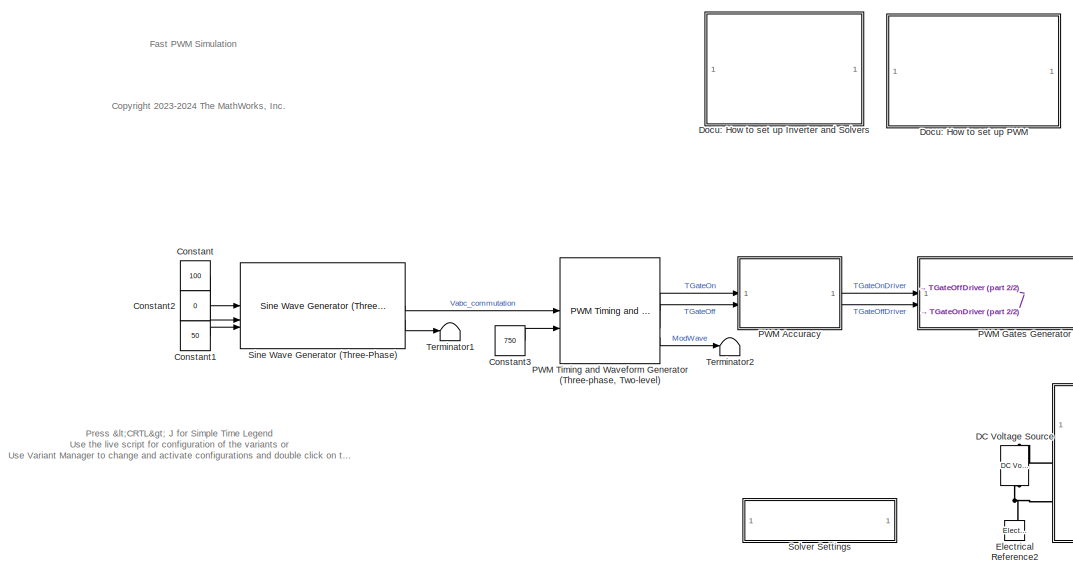
[diagram: root canvas - part 1/2, left side, full height]
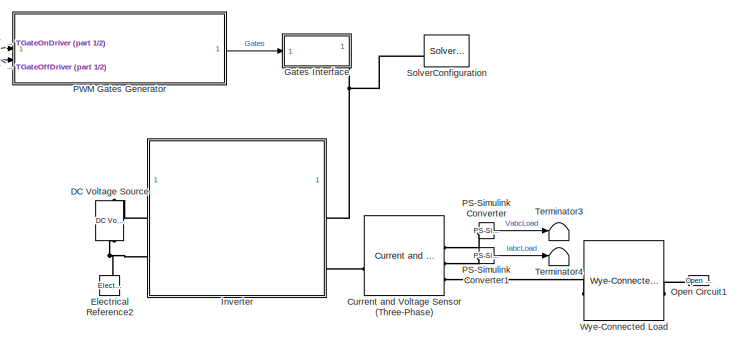
[diagram: root canvas - part 2/2, bottom right region]
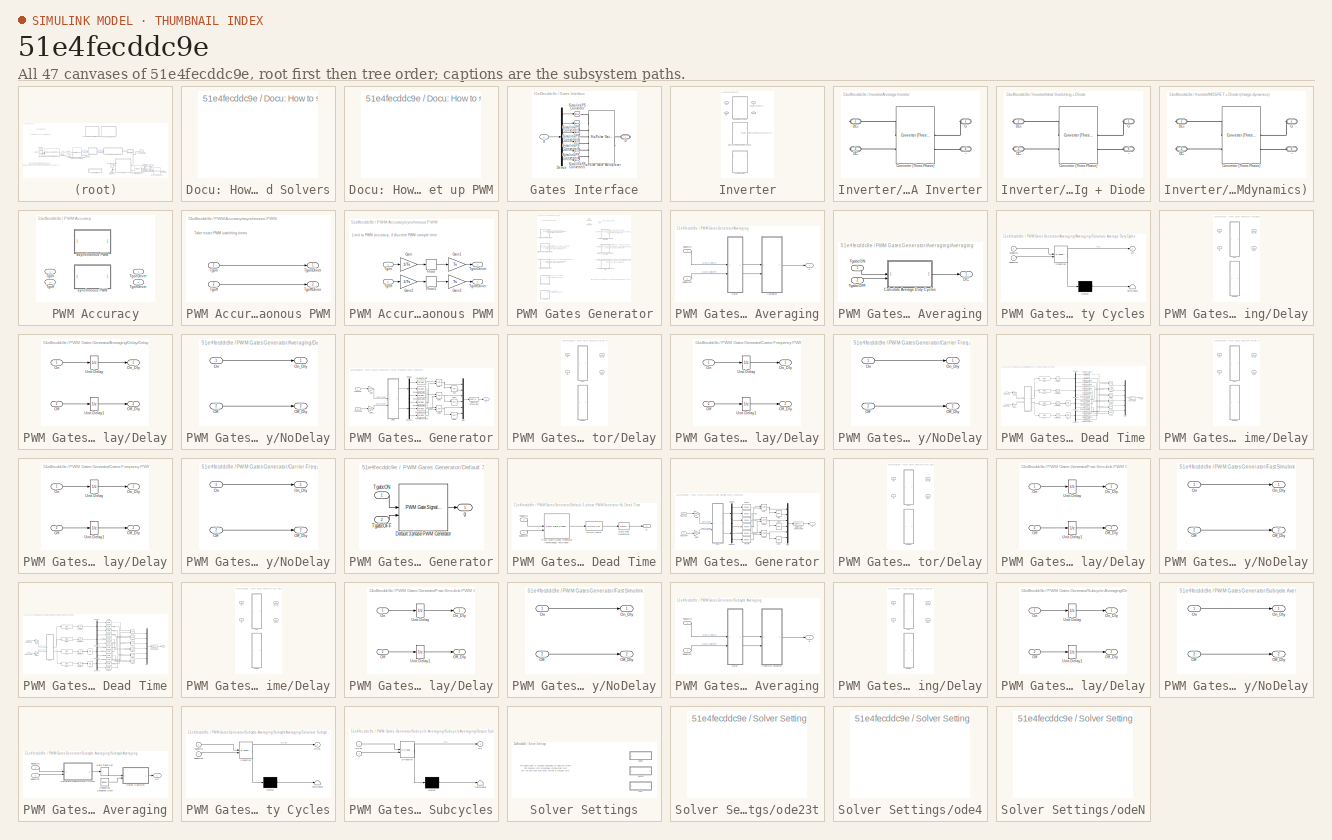
[diagram: thumbnail index - all 47 canvases of the model, root first then tree order]
MODEL slx_51e4fecddc9e
KIND model
CONFIG AbsTol = auto
CONFIG EnableMultiTasking = off
CONFIG FixedStep = Ts
CONFIG MaxStep = auto
CONFIG MinStep = auto
CONFIG PreLoadFcn = % Switching\nfsw = 2e4;\nTsw = 1/fsw;\nTs = 1e-7;\nN = 8; % Number of subcycles\n\nDeadTime = 2*Ts; % minimum value\n\n% Default Variants\nDelay = DelayType.Delay;\nInverter = InverterType.Ideal;\nPWM = PWMType.Def3PhasePWMGen;\nPWMAccuracy = PWMAccuracyType.Sync;\nSolver = SolverType.ode4;\n\n% Load Variant Configurations\nload FastPWMConfigurations.mat;
CONFIG RelTol = 1e-3
CONFIG SampleTimeConstraint = Unconstrained
CONFIG SolverName = ode23t
CONFIG StartTime = 0.0
CONFIG StopTime = 0.1
BLOCK [Constant] Constant
  SampleTime = Tsw
  Value = 100
BLOCK [Constant] Constant1
  SampleTime = Tsw
  Value = 50
BLOCK [Constant] Constant2
  SampleTime = Tsw
  Value = 0
BLOCK [Constant] Constant3
  SampleTime = Tsw
  Value = 750
BLOCK [Reference] Current and Voltage Sensor (Three-Phase)  REF=ee_lib/Sensors &
Transducers/Current and Voltage
Sensor (Three-Phase)
  SourceBlock = ee_lib/Sensors &\nTransducers/Current and Voltage\nSensor (Three-Phase)
  SourceType = Current and Voltage\nSensor (Three-Phase)
BLOCK [Reference] DC Voltage Source  REF=ee_lib/Additional
Components/SPICE Sources/DC Voltage Source
  NameLocation = right
  SourceBlock = ee_lib/Additional\nComponents/SPICE Sources/DC Voltage Source
  SourceType = DC Voltage Source
BLOCK [SubSystem] Docu: How to set up Inverter and Solvers
BLOCK [SubSystem] Docu: How to set up PWM
BLOCK [Reference] Electrical Reference2  REF=fl_lib/Electrical/Electrical Elements/Electrical Reference
  NameLocation = right
  SourceBlock = fl_lib/Electrical/Electrical Elements/Electrical Reference
  SourceType = Electrical Reference
BLOCK [SubSystem] Gates Interface
BLOCK [Demux] Gates Interface/Demux
  Outputs = 6
BLOCK [PMIOPort] Gates Interface/G
  Side = Right
BLOCK [Reference] Gates Interface/Simulink-PS Converter  REF=nesl_utility/Simulink-PS
Converter
  SourceBlock = nesl_utility/Simulink-PS\nConverter
  SourceType = Simulink-PS\nConverter
BLOCK [Reference] Gates Interface/Simulink-PS Converter1  REF=nesl_utility/Simulink-PS
Converter
  SourceBlock = nesl_utility/Simulink-PS\nConverter
  SourceType = Simulink-PS\nConverter
BLOCK [Reference] Gates Interface/Simulink-PS Converter2  REF=nesl_utility/Simulink-PS
Converter
  SourceBlock = nesl_utility/Simulink-PS\nConverter
  SourceType = Simulink-PS\nConverter
BLOCK [Reference] Gates Interface/Simulink-PS Converter3  REF=nesl_utility/Simulink-PS
Converter
  SourceBlock = nesl_utility/Simulink-PS\nConverter
  SourceType = Simulink-PS\nConverter
BLOCK [Reference] Gates Interface/Simulink-PS Converter4  REF=nesl_utility/Simulink-PS
Converter
  SourceBlock = nesl_utility/Simulink-PS\nConverter
  SourceType = Simulink-PS\nConverter
BLOCK [Reference] Gates Interface/Simulink-PS Converter5  REF=nesl_utility/Simulink-PS
Converter
  SourceBlock = nesl_utility/Simulink-PS\nConverter
  SourceType = Simulink-PS\nConverter
BLOCK [Reference] Gates Interface/Six-Pulse Gate Multiplexer  REF=ee_lib/Semiconductors &
Converters/Converters/Six-Pulse Gate
Multiplexer
  SourceBlock = ee_lib/Semiconductors &\nConverters/Converters/Six-Pulse Gate\nMultiplexer
  SourceType = Six-Pulse Gate\nMultiplexer
BLOCK [Inport] Gates Interface/g
BLOCK [SubSystem] Inverter
  Variant = on
  VariantControl = Choice
BLOCK [SubSystem] Inverter/Average Inverter
  VariantControl = Inverter == InverterType.Average
BLOCK [Reference] Inverter/Average Inverter/Converter (Three-Phase)  REF=ee_lib/Semiconductors &
Converters/Converters/Converter
(Three-Phase)
  SourceBlock = ee_lib/Semiconductors &\nConverters/Converters/Converter\n(Three-Phase)
  SourceType = Converter\n(Three-Phase)
BLOCK [PMIOPort] Inverter/Average Inverter/DC+
  Port = 2
  Side = Right
BLOCK [PMIOPort] Inverter/Average Inverter/DC-
  Port = 3
  Side = Right
BLOCK [PMIOPort] Inverter/Average Inverter/G
  Side = Left
BLOCK [PMIOPort] Inverter/Average Inverter/~
  Port = 4
  Side = Left
BLOCK [PMIOPort] Inverter/DC+
  Port = 2
  Side = Right
BLOCK [PMIOPort] Inverter/DC-
  Port = 3
  Side = Right
BLOCK [PMIOPort] Inverter/G
  Side = Left
BLOCK [SubSystem] Inverter/Ideal Switching + Diode
  VariantControl = Inverter == InverterType.Ideal
BLOCK [Reference] Inverter/Ideal Switching + Diode/Converter (Three-Phase)  REF=ee_lib/Semiconductors &
Converters/Converters/Converter
(Three-Phase)
  SourceBlock = ee_lib/Semiconductors &\nConverters/Converters/Converter\n(Three-Phase)
  SourceType = Converter\n(Three-Phase)
BLOCK [PMIOPort] Inverter/Ideal Switching + Diode/DC+
  Port = 2
  Side = Right
BLOCK [PMIOPort] Inverter/Ideal Switching + Diode/DC-
  Port = 3
  Side = Right
BLOCK [PMIOPort] Inverter/Ideal Switching + Diode/G
  Side = Left
BLOCK [PMIOPort] Inverter/Ideal Switching + Diode/~
  Port = 4
  Side = Left
BLOCK [SubSystem] Inverter/MOSFET + Diode (charge dynamics)
  VariantControl = Inverter == InverterType.MOSFET
BLOCK [Reference] Inverter/MOSFET + Diode (charge dynamics)/Converter (Three-Phase)  REF=ee_lib/Semiconductors &
Converters/Converters/Converter
(Three-Phase)
  SourceBlock = ee_lib/Semiconductors &\nConverters/Converters/Converter\n(Three-Phase)
  SourceType = Converter\n(Three-Phase)
BLOCK [PMIOPort] Inverter/MOSFET + Diode (charge dynamics)/DC+
  Port = 2
  Side = Right
BLOCK [PMIOPort] Inverter/MOSFET + Diode (charge dynamics)/DC-
  Port = 3
  Side = Right
BLOCK [PMIOPort] Inverter/MOSFET + Diode (charge dynamics)/G
  Side = Left
BLOCK [PMIOPort] Inverter/MOSFET + Diode (charge dynamics)/~
  Port = 4
  Side = Left
BLOCK [PMIOPort] Inverter/~
  Port = 4
  Side = Left
BLOCK [Reference] Open Circuit1  REF=fl_lib/Electrical/Electrical Elements/Open Circuit
  SourceBlock = fl_lib/Electrical/Electrical Elements/Open Circuit
  SourceType = Open Circuit
BLOCK [Reference] PS-Simulink Converter  REF=nesl_utility/PS-Simulink
Converter
  SourceBlock = nesl_utility/PS-Simulink\nConverter
  SourceType = PS-Simulink\nConverter
BLOCK [Reference] PS-Simulink Converter1  REF=nesl_utility/PS-Simulink
Converter
  SourceBlock = nesl_utility/PS-Simulink\nConverter
  SourceType = PS-Simulink\nConverter
BLOCK [SubSystem] PWM Accuracy
  InitFcn = if Ts == 0\n   PWMAccuracy = 0;% ContinuousPWM;\nelse\n   PWMAccuracy = 1; %DiscretePWM;\nend
  Variant = on
  VariantControl = Choice
BLOCK [Inport] PWM Accuracy/Tgoff
  Port = 2
BLOCK [Outport] PWM Accuracy/TgoffDriver
  Port = 2
BLOCK [Inport] PWM Accuracy/Tgon
BLOCK [Outport] PWM Accuracy/TgonDriver
BLOCK [SubSystem] PWM Accuracy/asynchronous PWM
  VariantControl = PWMAccuracy == PWMAccuracyType.Async
BLOCK [Inport] PWM Accuracy/asynchronous PWM/Tgoff
  Port = 2
BLOCK [Outport] PWM Accuracy/asynchronous PWM/TgoffDriver
  Port = 2
BLOCK [Inport] PWM Accuracy/asynchronous PWM/Tgon
BLOCK [Outport] PWM Accuracy/asynchronous PWM/TgonDriver
BLOCK [SubSystem] PWM Accuracy/synchronous PWM
  VariantControl = PWMAccuracy == PWMAccuracyType.Sync
BLOCK [Rounding] PWM Accuracy/synchronous PWM/Floor
  Operator = ceil
BLOCK [Rounding] PWM Accuracy/synchronous PWM/Floor1
BLOCK [Gain] PWM Accuracy/synchronous PWM/Gain
  Gain = 1/Ts
BLOCK [Gain] PWM Accuracy/synchronous PWM/Gain1
  Gain = Ts
BLOCK [Gain] PWM Accuracy/synchronous PWM/Gain2
  Gain = 1/Ts
BLOCK [Gain] PWM Accuracy/synchronous PWM/Gain3
  Gain = Ts
BLOCK [Inport] PWM Accuracy/synchronous PWM/Tgoff
  Port = 2
BLOCK [Outport] PWM Accuracy/synchronous PWM/TgoffDriver
  Port = 2
BLOCK [Inport] PWM Accuracy/synchronous PWM/Tgon
BLOCK [Outport] PWM Accuracy/synchronous PWM/TgonDriver
BLOCK [SubSystem] PWM Gates Generator
  Variant = on
  VariantControl = Choice
BLOCK [SubSystem] PWM Gates Generator/Averaging
  InitFcn = set_param(bdroot,'FixedStep','Tsw');\nset_param([bdroot,'/SolverConfiguration'],'LocalSolverSampleTime','Tsw');
  VariantControl = PWM == PWMType.Averaging
BLOCK [SubSystem] PWM Gates Generator/Averaging/Averaging
BLOCK [SubSystem] PWM Gates Generator/Averaging/Averaging/Calculate Average Duty Cycles
  ErrorFcn = Stateflow.Translate.translate
  LibrarySourceBlock = simulink/User-Defined\nFunctions/MATLAB Function
  PermitHierarchicalResolution = ExplicitOnly
  SFBlockType = MATLAB Function
  TreatAsAtomicUnit = on
BLOCK [Demux] PWM Gates Generator/Averaging/Averaging/Calculate Average Duty Cycles/ Demux 
  Outputs = 1
BLOCK [S-Function] PWM Gates Generator/Averaging/Averaging/Calculate Average Duty Cycles/ SFunction 
  EnableBusSupport = off
  FunctionName = sf_sfun
  Parameters = fsw
  PortCounts = [2 2]
  SFcnIsStateOwnerBlock = off
  SFunctionDeploymentMode = off
  Tag = Stateflow S-Function 1
BLOCK [Terminator] PWM Gates Generator/Averaging/Averaging/Calculate Average Duty Cycles/ Terminator 
BLOCK [Outport] PWM Gates Generator/Averaging/Averaging/Calculate Average Duty Cycles/DC
BLOCK [Inport] PWM Gates Generator/Averaging/Averaging/Calculate Average Duty Cycles/TgabcOFF
  Port = 2
BLOCK [Inport] PWM Gates Generator/Averaging/Averaging/Calculate Average Duty Cycles/TgabcON
BLOCK [Outport] PWM Gates Generator/Averaging/Averaging/DC
BLOCK [Inport] PWM Gates Generator/Averaging/Averaging/TgabcOFF
  Port = 2
BLOCK [Inport] PWM Gates Generator/Averaging/Averaging/TgabcON
BLOCK [SubSystem] PWM Gates Generator/Averaging/Delay
  Variant = on
  VariantControl = Choice
BLOCK [SubSystem] PWM Gates Generator/Averaging/Delay/Delay
  VariantControl = Delay == DelayType.Delay
BLOCK [Inport] PWM Gates Generator/Averaging/Delay/Delay/Off
  Port = 2
BLOCK [Outport] PWM Gates Generator/Averaging/Delay/Delay/Off_Dly
  Port = 2
BLOCK [Inport] PWM Gates Generator/Averaging/Delay/Delay/On
BLOCK [Outport] PWM Gates Generator/Averaging/Delay/Delay/On_Dly
BLOCK [UnitDelay] PWM Gates Generator/Averaging/Delay/Delay/Unit Delay
  HasFrameUpgradeWarning = on
  SampleTime = 1/fsw
BLOCK [UnitDelay] PWM Gates Generator/Averaging/Delay/Delay/Unit Delay1
  HasFrameUpgradeWarning = on
  SampleTime = 1/fsw
BLOCK [SubSystem] PWM Gates Generator/Averaging/Delay/NoDelay
  VariantControl = Delay == DelayType.NoDelay
BLOCK [Inport] PWM Gates Generator/Averaging/Delay/NoDelay/Off
  Port = 2
BLOCK [Outport] PWM Gates Generator/Averaging/Delay/NoDelay/Off_Dly
  Port = 2
BLOCK [Inport] PWM Gates Generator/Averaging/Delay/NoDelay/On
BLOCK [Outport] PWM Gates Generator/Averaging/Delay/NoDelay/On_Dly
BLOCK [Inport] PWM Gates Generator/Averaging/Delay/Off
  Port = 2
BLOCK [Outport] PWM Gates Generator/Averaging/Delay/Off_Dly
  Port = 2
BLOCK [Inport] PWM Gates Generator/Averaging/Delay/On
BLOCK [Outport] PWM Gates Generator/Averaging/Delay/On_Dly
BLOCK [Inport] PWM Gates Generator/Averaging/TgabcOFF
  Port = 2
BLOCK [Inport] PWM Gates Generator/Averaging/TgabcON
BLOCK [Outport] PWM Gates Generator/Averaging/g
BLOCK [SubSystem] PWM Gates Generator/Carrier Frequency PWM Generator
  InitFcn = set_param(bdroot,'FixedStep','Ts');\nset_param([bdroot,'/SolverConfiguration'],'LocalSolverSampleTime','Ts');
  VariantControl = PWM == PWMType.CarrierFreqPWMGen
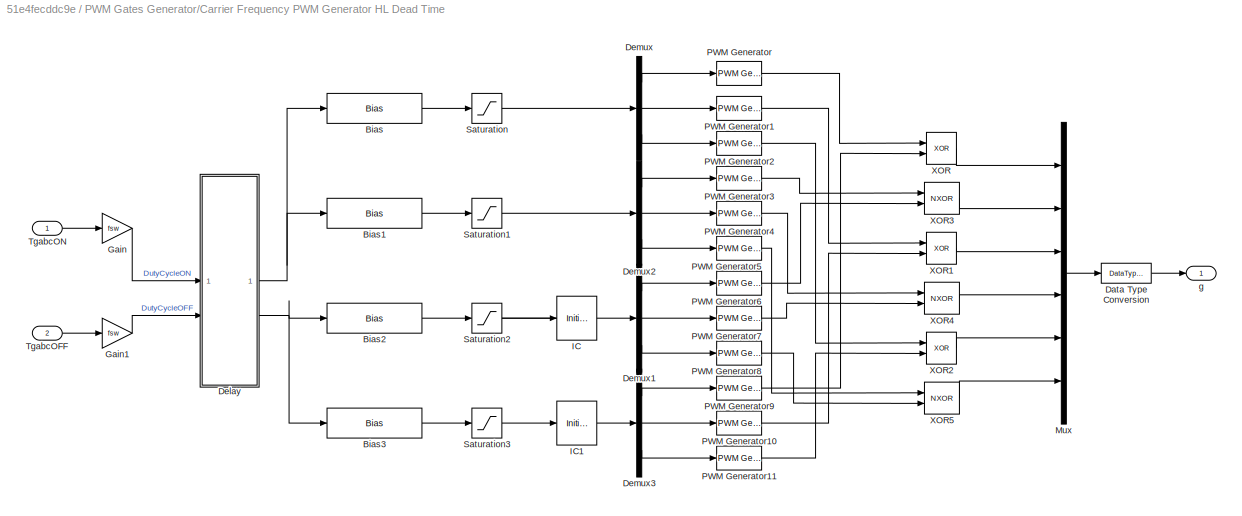
BLOCK [SubSystem] PWM Gates Generator/Carrier Frequency PWM Generator HL Dead Time
  InitFcn = set_param(bdroot,'FixedStep','Ts');\nset_param([bdroot,'/SolverConfiguration'],'LocalSolverSampleTime','Ts');
  VariantControl = PWM == PWMType.CarrierFreqPWMGenHighLowDeadTime
BLOCK [Bias] PWM Gates Generator/Carrier Frequency PWM Generator HL Dead Time/Bias
  Bias = T_Dead/2*fsw
  SaturateOnIntegerOverflow = off
BLOCK [Bias] PWM Gates Generator/Carrier Frequency PWM Generator HL Dead Time/Bias1
  Bias = -T_Dead/2*fsw
  SaturateOnIntegerOverflow = off
BLOCK [Bias] PWM Gates Generator/Carrier Frequency PWM Generator HL Dead Time/Bias2
  Bias = T_Dead/2*fsw
  SaturateOnIntegerOverflow = off
BLOCK [Bias] PWM Gates Generator/Carrier Frequency PWM Generator HL Dead Time/Bias3
  Bias = -T_Dead/2*fsw
  SaturateOnIntegerOverflow = off
BLOCK [DataTypeConversion] PWM Gates Generator/Carrier Frequency PWM Generator HL Dead Time/Data Type Conversion
  RndMeth = Floor
  SaturateOnIntegerOverflow = off
BLOCK [SubSystem] PWM Gates Generator/Carrier Frequency PWM Generator HL Dead Time/Delay
  Variant = on
  VariantControl = Choice
BLOCK [SubSystem] PWM Gates Generator/Carrier Frequency PWM Generator HL Dead Time/Delay/Delay
  VariantControl = Delay == DelayType.Delay
BLOCK [Inport] PWM Gates Generator/Carrier Frequency PWM Generator HL Dead Time/Delay/Delay/Off
  Port = 2
BLOCK [Outport] PWM Gates Generator/Carrier Frequency PWM Generator HL Dead Time/Delay/Delay/Off_Dly
  Port = 2
BLOCK [Inport] PWM Gates Generator/Carrier Frequency PWM Generator HL Dead Time/Delay/Delay/On
BLOCK [Outport] PWM Gates Generator/Carrier Frequency PWM Generator HL Dead Time/Delay/Delay/On_Dly
BLOCK [UnitDelay] PWM Gates Generator/Carrier Frequency PWM Generator HL Dead Time/Delay/Delay/Unit Delay
  HasFrameUpgradeWarning = on
  SampleTime = 1/fsw
BLOCK [UnitDelay] PWM Gates Generator/Carrier Frequency PWM Generator HL Dead Time/Delay/Delay/Unit Delay1
  HasFrameUpgradeWarning = on
  SampleTime = 1/fsw
BLOCK [SubSystem] PWM Gates Generator/Carrier Frequency PWM Generator HL Dead Time/Delay/NoDelay
  VariantControl = Delay == DelayType.NoDelay
BLOCK [Inport] PWM Gates Generator/Carrier Frequency PWM Generator HL Dead Time/Delay/NoDelay/Off
  Port = 2
BLOCK [Outport] PWM Gates Generator/Carrier Frequency PWM Generator HL Dead Time/Delay/NoDelay/Off_Dly
  Port = 2
BLOCK [Inport] PWM Gates Generator/Carrier Frequency PWM Generator HL Dead Time/Delay/NoDelay/On
BLOCK [Outport] PWM Gates Generator/Carrier Frequency PWM Generator HL Dead Time/Delay/NoDelay/On_Dly
BLOCK [Inport] PWM Gates Generator/Carrier Frequency PWM Generator HL Dead Time/Delay/Off
  Port = 2
BLOCK [Outport] PWM Gates Generator/Carrier Frequency PWM Generator HL Dead Time/Delay/Off_Dly
  Port = 2
BLOCK [Inport] PWM Gates Generator/Carrier Frequency PWM Generator HL Dead Time/Delay/On
BLOCK [Outport] PWM Gates Generator/Carrier Frequency PWM Generator HL Dead Time/Delay/On_Dly
BLOCK [Demux] PWM Gates Generator/Carrier Frequency PWM Generator HL Dead Time/Demux
  Outputs = 3
BLOCK [Demux] PWM Gates Generator/Carrier Frequency PWM Generator HL Dead Time/Demux1
  Outputs = 3
BLOCK [Demux] PWM Gates Generator/Carrier Frequency PWM Generator HL Dead Time/Demux2
  Outputs = 3
BLOCK [Demux] PWM Gates Generator/Carrier Frequency PWM Generator HL Dead Time/Demux3
  Outputs = 3
BLOCK [Gain] PWM Gates Generator/Carrier Frequency PWM Generator HL Dead Time/Gain
  Gain = fsw
BLOCK [Gain] PWM Gates Generator/Carrier Frequency PWM Generator HL Dead Time/Gain1
  Gain = fsw
BLOCK [InitialCondition] PWM Gates Generator/Carrier Frequency PWM Generator HL Dead Time/IC
  Value = [0 0 0]
BLOCK [InitialCondition] PWM Gates Generator/Carrier Frequency PWM Generator HL Dead Time/IC1
  Value = [0 0 0]
BLOCK [Mux] PWM Gates Generator/Carrier Frequency PWM Generator HL Dead Time/Mux
  DisplayOption = bar
  Inputs = 6
BLOCK [Reference] PWM Gates Generator/Carrier Frequency PWM Generator HL Dead Time/PWM Generator  REF=eePwmGenerator/PWM Generator
  LibrarySourceBlock = ee_sl_lib/Pulse Width\nModulation/PWM Generator
  SourceBlock = eePwmGenerator/PWM Generator
  SourceType = PWM Generator
BLOCK [Reference] PWM Gates Generator/Carrier Frequency PWM Generator HL Dead Time/PWM Generator1  REF=eePwmGenerator/PWM Generator
  LibrarySourceBlock = ee_sl_lib/Pulse Width\nModulation/PWM Generator
  SourceBlock = eePwmGenerator/PWM Generator
  SourceType = PWM Generator
BLOCK [Reference] PWM Gates Generator/Carrier Frequency PWM Generator HL Dead Time/PWM Generator10  REF=eePwmGenerator/PWM Generator
  LibrarySourceBlock = ee_sl_lib/Pulse Width\nModulation/PWM Generator
  SourceBlock = eePwmGenerator/PWM Generator
  SourceType = PWM Generator
BLOCK [Reference] PWM Gates Generator/Carrier Frequency PWM Generator HL Dead Time/PWM Generator11  REF=eePwmGenerator/PWM Generator
  LibrarySourceBlock = ee_sl_lib/Pulse Width\nModulation/PWM Generator
  SourceBlock = eePwmGenerator/PWM Generator
  SourceType = PWM Generator
BLOCK [Reference] PWM Gates Generator/Carrier Frequency PWM Generator HL Dead Time/PWM Generator2  REF=eePwmGenerator/PWM Generator
  LibrarySourceBlock = ee_sl_lib/Pulse Width\nModulation/PWM Generator
  SourceBlock = eePwmGenerator/PWM Generator
  SourceType = PWM Generator
BLOCK [Reference] PWM Gates Generator/Carrier Frequency PWM Generator HL Dead Time/PWM Generator3  REF=eePwmGenerator/PWM Generator
  LibrarySourceBlock = ee_sl_lib/Pulse Width\nModulation/PWM Generator
  SourceBlock = eePwmGenerator/PWM Generator
  SourceType = PWM Generator
BLOCK [Reference] PWM Gates Generator/Carrier Frequency PWM Generator HL Dead Time/PWM Generator4  REF=eePwmGenerator/PWM Generator
  LibrarySourceBlock = ee_sl_lib/Pulse Width\nModulation/PWM Generator
  SourceBlock = eePwmGenerator/PWM Generator
  SourceType = PWM Generator
BLOCK [Reference] PWM Gates Generator/Carrier Frequency PWM Generator HL Dead Time/PWM Generator5  REF=eePwmGenerator/PWM Generator
  LibrarySourceBlock = ee_sl_lib/Pulse Width\nModulation/PWM Generator
  SourceBlock = eePwmGenerator/PWM Generator
  SourceType = PWM Generator
BLOCK [Reference] PWM Gates Generator/Carrier Frequency PWM Generator HL Dead Time/PWM Generator6  REF=eePwmGenerator/PWM Generator
  LibrarySourceBlock = ee_sl_lib/Pulse Width\nModulation/PWM Generator
  SourceBlock = eePwmGenerator/PWM Generator
  SourceType = PWM Generator
BLOCK [Reference] PWM Gates Generator/Carrier Frequency PWM Generator HL Dead Time/PWM Generator7  REF=eePwmGenerator/PWM Generator
  LibrarySourceBlock = ee_sl_lib/Pulse Width\nModulation/PWM Generator
  SourceBlock = eePwmGenerator/PWM Generator
  SourceType = PWM Generator
BLOCK [Reference] PWM Gates Generator/Carrier Frequency PWM Generator HL Dead Time/PWM Generator8  REF=eePwmGenerator/PWM Generator
  LibrarySourceBlock = ee_sl_lib/Pulse Width\nModulation/PWM Generator
  SourceBlock = eePwmGenerator/PWM Generator
  SourceType = PWM Generator
BLOCK [Reference] PWM Gates Generator/Carrier Frequency PWM Generator HL Dead Time/PWM Generator9  REF=eePwmGenerator/PWM Generator
  LibrarySourceBlock = ee_sl_lib/Pulse Width\nModulation/PWM Generator
  SourceBlock = eePwmGenerator/PWM Generator
  SourceType = PWM Generator
BLOCK [Saturate] PWM Gates Generator/Carrier Frequency PWM Generator HL Dead Time/Saturation
  LowerLimit = 0
  UpperLimit = 1/2
BLOCK [Saturate] PWM Gates Generator/Carrier Frequency PWM Generator HL Dead Time/Saturation1
  LowerLimit = 0
  UpperLimit = 1/2
BLOCK [Saturate] PWM Gates Generator/Carrier Frequency PWM Generator HL Dead Time/Saturation2
  LowerLimit = 1/2
  UpperLimit = 1
BLOCK [Saturate] PWM Gates Generator/Carrier Frequency PWM Generator HL Dead Time/Saturation3
  LowerLimit = 1/2
  UpperLimit = 1
BLOCK [Inport] PWM Gates Generator/Carrier Frequency PWM Generator HL Dead Time/TgabcOFF
  Port = 2
BLOCK [Inport] PWM Gates Generator/Carrier Frequency PWM Generator HL Dead Time/TgabcON
BLOCK [Logic] PWM Gates Generator/Carrier Frequency PWM Generator HL Dead Time/XOR
  AllPortsSameDT = off
  IconShape = distinctive
  Operator = XOR
  OutDataTypeStr = boolean
BLOCK [Logic] PWM Gates Generator/Carrier Frequency PWM Generator HL Dead Time/XOR1
  AllPortsSameDT = off
  IconShape = distinctive
  Operator = XOR
  OutDataTypeStr = boolean
BLOCK [Logic] PWM Gates Generator/Carrier Frequency PWM Generator HL Dead Time/XOR2
  AllPortsSameDT = off
  IconShape = distinctive
  Operator = XOR
  OutDataTypeStr = boolean
BLOCK [Logic] PWM Gates Generator/Carrier Frequency PWM Generator HL Dead Time/XOR3
  AllPortsSameDT = off
  IconShape = distinctive
  Operator = NXOR
  OutDataTypeStr = boolean
BLOCK [Logic] PWM Gates Generator/Carrier Frequency PWM Generator HL Dead Time/XOR4
  AllPortsSameDT = off
  IconShape = distinctive
  Operator = NXOR
  OutDataTypeStr = boolean
BLOCK [Logic] PWM Gates Generator/Carrier Frequency PWM Generator HL Dead Time/XOR5
  AllPortsSameDT = off
  IconShape = distinctive
  Operator = NXOR
  OutDataTypeStr = boolean
BLOCK [Outport] PWM Gates Generator/Carrier Frequency PWM Generator HL Dead Time/g
BLOCK [DataTypeConversion] PWM Gates Generator/Carrier Frequency PWM Generator/Data Type Conversion
  RndMeth = Floor
  SaturateOnIntegerOverflow = off
BLOCK [SubSystem] PWM Gates Generator/Carrier Frequency PWM Generator/Delay
  Variant = on
  VariantControl = Choice
BLOCK [SubSystem] PWM Gates Generator/Carrier Frequency PWM Generator/Delay/Delay
  VariantControl = Delay == DelayType.Delay
BLOCK [Inport] PWM Gates Generator/Carrier Frequency PWM Generator/Delay/Delay/Off
  Port = 2
BLOCK [Outport] PWM Gates Generator/Carrier Frequency PWM Generator/Delay/Delay/Off_Dly
  Port = 2
BLOCK [Inport] PWM Gates Generator/Carrier Frequency PWM Generator/Delay/Delay/On
BLOCK [Outport] PWM Gates Generator/Carrier Frequency PWM Generator/Delay/Delay/On_Dly
BLOCK [UnitDelay] PWM Gates Generator/Carrier Frequency PWM Generator/Delay/Delay/Unit Delay
  HasFrameUpgradeWarning = on
  SampleTime = 1/fsw
BLOCK [UnitDelay] PWM Gates Generator/Carrier Frequency PWM Generator/Delay/Delay/Unit Delay1
  HasFrameUpgradeWarning = on
  SampleTime = 1/fsw
BLOCK [SubSystem] PWM Gates Generator/Carrier Frequency PWM Generator/Delay/NoDelay
  VariantControl = Delay == DelayType.NoDelay
BLOCK [Inport] PWM Gates Generator/Carrier Frequency PWM Generator/Delay/NoDelay/Off
  Port = 2
BLOCK [Outport] PWM Gates Generator/Carrier Frequency PWM Generator/Delay/NoDelay/Off_Dly
  Port = 2
BLOCK [Inport] PWM Gates Generator/Carrier Frequency PWM Generator/Delay/NoDelay/On
BLOCK [Outport] PWM Gates Generator/Carrier Frequency PWM Generator/Delay/NoDelay/On_Dly
BLOCK [Inport] PWM Gates Generator/Carrier Frequency PWM Generator/Delay/Off
  Port = 2
BLOCK [Outport] PWM Gates Generator/Carrier Frequency PWM Generator/Delay/Off_Dly
  Port = 2
BLOCK [Inport] PWM Gates Generator/Carrier Frequency PWM Generator/Delay/On
BLOCK [Outport] PWM Gates Generator/Carrier Frequency PWM Generator/Delay/On_Dly
BLOCK [Demux] PWM Gates Generator/Carrier Frequency PWM Generator/Demux
  Outputs = 3
BLOCK [Demux] PWM Gates Generator/Carrier Frequency PWM Generator/Demux1
  Outputs = 3
BLOCK [Gain] PWM Gates Generator/Carrier Frequency PWM Generator/Gain
  Gain = fsw
BLOCK [Gain] PWM Gates Generator/Carrier Frequency PWM Generator/Gain1
  Gain = fsw
BLOCK [Mux] PWM Gates Generator/Carrier Frequency PWM Generator/Mux
  DisplayOption = bar
  Inputs = 6
BLOCK [Logic] PWM Gates Generator/Carrier Frequency PWM Generator/NOT
  AllPortsSameDT = off
  IconShape = distinctive
  Operator = NOT
  OutDataTypeStr = boolean
BLOCK [Logic] PWM Gates Generator/Carrier Frequency PWM Generator/NOT1
  AllPortsSameDT = off
  IconShape = distinctive
  Operator = NOT
  OutDataTypeStr = boolean
BLOCK [Logic] PWM Gates Generator/Carrier Frequency PWM Generator/NOT2
  AllPortsSameDT = off
  IconShape = distinctive
  Operator = NOT
  OutDataTypeStr = boolean
BLOCK [Reference] PWM Gates Generator/Carrier Frequency PWM Generator/PWM Generator  REF=eePwmGenerator/PWM Generator
  LibrarySourceBlock = ee_sl_lib/Pulse Width\nModulation/PWM Generator
  SourceBlock = eePwmGenerator/PWM Generator
  SourceType = PWM Generator
BLOCK [Reference] PWM Gates Generator/Carrier Frequency PWM Generator/PWM Generator1  REF=eePwmGenerator/PWM Generator
  LibrarySourceBlock = ee_sl_lib/Pulse Width\nModulation/PWM Generator
  SourceBlock = eePwmGenerator/PWM Generator
  SourceType = PWM Generator
BLOCK [Reference] PWM Gates Generator/Carrier Frequency PWM Generator/PWM Generator2  REF=eePwmGenerator/PWM Generator
  LibrarySourceBlock = ee_sl_lib/Pulse Width\nModulation/PWM Generator
  SourceBlock = eePwmGenerator/PWM Generator
  SourceType = PWM Generator
BLOCK [Reference] PWM Gates Generator/Carrier Frequency PWM Generator/PWM Generator3  REF=eePwmGenerator/PWM Generator
  LibrarySourceBlock = ee_sl_lib/Pulse Width\nModulation/PWM Generator
  SourceBlock = eePwmGenerator/PWM Generator
  SourceType = PWM Generator
BLOCK [Reference] PWM Gates Generator/Carrier Frequency PWM Generator/PWM Generator4  REF=eePwmGenerator/PWM Generator
  LibrarySourceBlock = ee_sl_lib/Pulse Width\nModulation/PWM Generator
  SourceBlock = eePwmGenerator/PWM Generator
  SourceType = PWM Generator
BLOCK [Reference] PWM Gates Generator/Carrier Frequency PWM Generator/PWM Generator5  REF=eePwmGenerator/PWM Generator
  LibrarySourceBlock = ee_sl_lib/Pulse Width\nModulation/PWM Generator
  SourceBlock = eePwmGenerator/PWM Generator
  SourceType = PWM Generator
BLOCK [Inport] PWM Gates Generator/Carrier Frequency PWM Generator/TgabcOFF
  Port = 2
BLOCK [Inport] PWM Gates Generator/Carrier Frequency PWM Generator/TgabcON
BLOCK [Logic] PWM Gates Generator/Carrier Frequency PWM Generator/XOR
  AllPortsSameDT = off
  IconShape = distinctive
  Operator = XOR
  OutDataTypeStr = boolean
BLOCK [Logic] PWM Gates Generator/Carrier Frequency PWM Generator/XOR1
  AllPortsSameDT = off
  IconShape = distinctive
  Operator = XOR
  OutDataTypeStr = boolean
BLOCK [Logic] PWM Gates Generator/Carrier Frequency PWM Generator/XOR2
  AllPortsSameDT = off
  IconShape = distinctive
  Operator = XOR
  OutDataTypeStr = boolean
BLOCK [Outport] PWM Gates Generator/Carrier Frequency PWM Generator/g
BLOCK [SubSystem] PWM Gates Generator/Default 3 phase PWM Generator
  InitFcn = set_param(bdroot,'FixedStep','Ts');\nset_param([bdroot,'/SolverConfiguration'],'LocalSolverSampleTime','Ts');
  VariantControl = PWM == PWMType.Def3PhasePWMGen
BLOCK [SubSystem] PWM Gates Generator/Default 3 phase PWM Generator HL Dead Time
  InitFcn = set_param(bdroot,'FixedStep','Ts');\nset_param([bdroot,'/SolverConfiguration'],'LocalSolverSampleTime','Ts');
  VariantControl = PWM == PWMType.Def3PhasePWMGenHighLowDeadTime
BLOCK [DataTypeConversion] PWM Gates Generator/Default 3 phase PWM Generator HL Dead Time/Data Type Conversion
  RndMeth = Floor
  SaturateOnIntegerOverflow = off
BLOCK [Reference] PWM Gates Generator/Default 3 phase PWM Generator HL Dead Time/On-Off Delay  REF=eeGeneralControl/On-Off Delay
  LibrarySourceBlock = ee_sl_lib/General Control/On-Off Delay
  SourceBlock = eeGeneralControl/On-Off Delay
  SourceType = On-Off Delay
BLOCK [Reference] PWM Gates Generator/Default 3 phase PWM Generator HL Dead Time/PWM Gate Signal Generator (Three-phase, Two-level)  REF=eePwmGeneratorTwoLevel/PWM Gate Signal Generator
(Three-phase, Two-level)
  SourceBlock = eePwmGeneratorTwoLevel/PWM Gate Signal Generator\n(Three-phase, Two-level)
  SourceType = PWM Gate Signal Generator (three-phase, two-level)
BLOCK [Inport] PWM Gates Generator/Default 3 phase PWM Generator HL Dead Time/TgabcOFF
BLOCK [Inport] PWM Gates Generator/Default 3 phase PWM Generator HL Dead Time/TgabcON
  Port = 2
BLOCK [Outport] PWM Gates Generator/Default 3 phase PWM Generator HL Dead Time/g
BLOCK [Reference] PWM Gates Generator/Default 3 phase PWM Generator/Default 3 phase PWM Generator  REF=eePwmGeneratorTwoLevel/PWM Gate Signal Generator
(Three-phase, Two-level)
  SourceBlock = eePwmGeneratorTwoLevel/PWM Gate Signal Generator\n(Three-phase, Two-level)
  SourceType = PWM Gate Signal Generator (three-phase, two-level)
BLOCK [Inport] PWM Gates Generator/Default 3 phase PWM Generator/TgabcOFF
  Port = 2
BLOCK [Inport] PWM Gates Generator/Default 3 phase PWM Generator/TgabcON
BLOCK [Outport] PWM Gates Generator/Default 3 phase PWM Generator/g
BLOCK [SubSystem] PWM Gates Generator/Fast Simulink PWM Generator
  ClipboardFcn = set_param(bdroot,'FixedStep','Ts');\nset_param([bdroot,'/SolverConfiguration'],'LocalSolverSampleTime','Ts');
  VariantControl = PWM == PWMType.FastSimulinkPWMGen
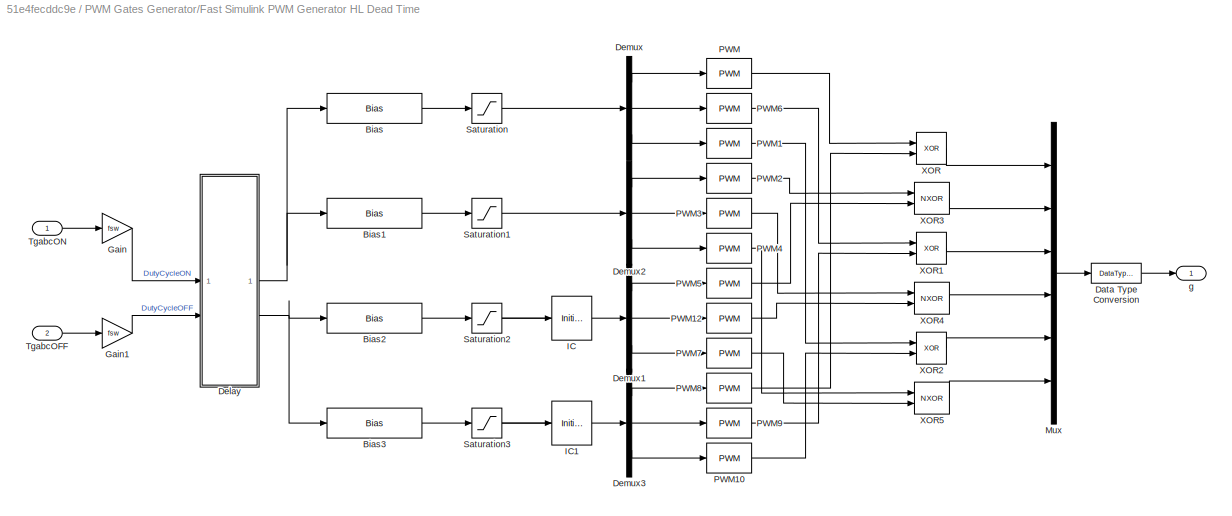
BLOCK [SubSystem] PWM Gates Generator/Fast Simulink PWM Generator HL Dead Time
  InitFcn = set_param(bdroot,'FixedStep','Ts');\nset_param([bdroot,'/SolverConfiguration'],'LocalSolverSampleTime','Ts');
  VariantControl = PWM == PWMType.FastSimulinkPWMGenHighLowDeadTime
BLOCK [Bias] PWM Gates Generator/Fast Simulink PWM Generator HL Dead Time/Bias
  Bias = T_Dead/2*fsw
  SaturateOnIntegerOverflow = off
BLOCK [Bias] PWM Gates Generator/Fast Simulink PWM Generator HL Dead Time/Bias1
  Bias = -T_Dead/2*fsw
  SaturateOnIntegerOverflow = off
BLOCK [Bias] PWM Gates Generator/Fast Simulink PWM Generator HL Dead Time/Bias2
  Bias = T_Dead/2*fsw
  SaturateOnIntegerOverflow = off
BLOCK [Bias] PWM Gates Generator/Fast Simulink PWM Generator HL Dead Time/Bias3
  Bias = -T_Dead/2*fsw
  SaturateOnIntegerOverflow = off
BLOCK [DataTypeConversion] PWM Gates Generator/Fast Simulink PWM Generator HL Dead Time/Data Type Conversion
  RndMeth = Floor
  SaturateOnIntegerOverflow = off
BLOCK [SubSystem] PWM Gates Generator/Fast Simulink PWM Generator HL Dead Time/Delay
  Variant = on
  VariantControl = Choice
BLOCK [SubSystem] PWM Gates Generator/Fast Simulink PWM Generator HL Dead Time/Delay/Delay
  VariantControl = Delay == DelayType.Delay
BLOCK [Inport] PWM Gates Generator/Fast Simulink PWM Generator HL Dead Time/Delay/Delay/Off
  Port = 2
BLOCK [Outport] PWM Gates Generator/Fast Simulink PWM Generator HL Dead Time/Delay/Delay/Off_Dly
  Port = 2
BLOCK [Inport] PWM Gates Generator/Fast Simulink PWM Generator HL Dead Time/Delay/Delay/On
BLOCK [Outport] PWM Gates Generator/Fast Simulink PWM Generator HL Dead Time/Delay/Delay/On_Dly
BLOCK [UnitDelay] PWM Gates Generator/Fast Simulink PWM Generator HL Dead Time/Delay/Delay/Unit Delay
  HasFrameUpgradeWarning = on
  SampleTime = 1/fsw
BLOCK [UnitDelay] PWM Gates Generator/Fast Simulink PWM Generator HL Dead Time/Delay/Delay/Unit Delay1
  HasFrameUpgradeWarning = on
  SampleTime = 1/fsw
BLOCK [SubSystem] PWM Gates Generator/Fast Simulink PWM Generator HL Dead Time/Delay/NoDelay
  VariantControl = Delay == DelayType.NoDelay
BLOCK [Inport] PWM Gates Generator/Fast Simulink PWM Generator HL Dead Time/Delay/NoDelay/Off
  Port = 2
BLOCK [Outport] PWM Gates Generator/Fast Simulink PWM Generator HL Dead Time/Delay/NoDelay/Off_Dly
  Port = 2
BLOCK [Inport] PWM Gates Generator/Fast Simulink PWM Generator HL Dead Time/Delay/NoDelay/On
BLOCK [Outport] PWM Gates Generator/Fast Simulink PWM Generator HL Dead Time/Delay/NoDelay/On_Dly
BLOCK [Inport] PWM Gates Generator/Fast Simulink PWM Generator HL Dead Time/Delay/Off
  Port = 2
BLOCK [Outport] PWM Gates Generator/Fast Simulink PWM Generator HL Dead Time/Delay/Off_Dly
  Port = 2
BLOCK [Inport] PWM Gates Generator/Fast Simulink PWM Generator HL Dead Time/Delay/On
BLOCK [Outport] PWM Gates Generator/Fast Simulink PWM Generator HL Dead Time/Delay/On_Dly
BLOCK [Demux] PWM Gates Generator/Fast Simulink PWM Generator HL Dead Time/Demux
  Outputs = 3
BLOCK [Demux] PWM Gates Generator/Fast Simulink PWM Generator HL Dead Time/Demux1
  Outputs = 3
BLOCK [Demux] PWM Gates Generator/Fast Simulink PWM Generator HL Dead Time/Demux2
  Outputs = 3
BLOCK [Demux] PWM Gates Generator/Fast Simulink PWM Generator HL Dead Time/Demux3
  Outputs = 3
BLOCK [Gain] PWM Gates Generator/Fast Simulink PWM Generator HL Dead Time/Gain
  Gain = fsw
BLOCK [Gain] PWM Gates Generator/Fast Simulink PWM Generator HL Dead Time/Gain1
  Gain = fsw
BLOCK [InitialCondition] PWM Gates Generator/Fast Simulink PWM Generator HL Dead Time/IC
  Value = [0 0 0]
BLOCK [InitialCondition] PWM Gates Generator/Fast Simulink PWM Generator HL Dead Time/IC1
  Value = [0 0 0]
BLOCK [Mux] PWM Gates Generator/Fast Simulink PWM Generator HL Dead Time/Mux
  DisplayOption = bar
  Inputs = 6
BLOCK [Reference] PWM Gates Generator/Fast Simulink PWM Generator HL Dead Time/PWM  REF=simulink/Discontinuities/PWM
  DisableCoverage = on
  SourceBlock = simulink/Discontinuities/PWM
  SourceType = PWM
BLOCK [Reference] PWM Gates Generator/Fast Simulink PWM Generator HL Dead Time/PWM1  REF=simulink/Discontinuities/PWM
  DisableCoverage = on
  SourceBlock = simulink/Discontinuities/PWM
  SourceType = PWM
BLOCK [Reference] PWM Gates Generator/Fast Simulink PWM Generator HL Dead Time/PWM10  REF=simulink/Discontinuities/PWM
  DisableCoverage = on
  SourceBlock = simulink/Discontinuities/PWM
  SourceType = PWM
BLOCK [Reference] PWM Gates Generator/Fast Simulink PWM Generator HL Dead Time/PWM12  REF=simulink/Discontinuities/PWM
  DisableCoverage = on
  SourceBlock = simulink/Discontinuities/PWM
  SourceType = PWM
BLOCK [Reference] PWM Gates Generator/Fast Simulink PWM Generator HL Dead Time/PWM2  REF=simulink/Discontinuities/PWM
  DisableCoverage = on
  SourceBlock = simulink/Discontinuities/PWM
  SourceType = PWM
BLOCK [Reference] PWM Gates Generator/Fast Simulink PWM Generator HL Dead Time/PWM3  REF=simulink/Discontinuities/PWM
  DisableCoverage = on
  SourceBlock = simulink/Discontinuities/PWM
  SourceType = PWM
BLOCK [Reference] PWM Gates Generator/Fast Simulink PWM Generator HL Dead Time/PWM4  REF=simulink/Discontinuities/PWM
  DisableCoverage = on
  SourceBlock = simulink/Discontinuities/PWM
  SourceType = PWM
BLOCK [Reference] PWM Gates Generator/Fast Simulink PWM Generator HL Dead Time/PWM5  REF=simulink/Discontinuities/PWM
  DisableCoverage = on
  SourceBlock = simulink/Discontinuities/PWM
  SourceType = PWM
BLOCK [Reference] PWM Gates Generator/Fast Simulink PWM Generator HL Dead Time/PWM6  REF=simulink/Discontinuities/PWM
  DisableCoverage = on
  SourceBlock = simulink/Discontinuities/PWM
  SourceType = PWM
BLOCK [Reference] PWM Gates Generator/Fast Simulink PWM Generator HL Dead Time/PWM7  REF=simulink/Discontinuities/PWM
  DisableCoverage = on
  SourceBlock = simulink/Discontinuities/PWM
  SourceType = PWM
BLOCK [Reference] PWM Gates Generator/Fast Simulink PWM Generator HL Dead Time/PWM8  REF=simulink/Discontinuities/PWM
  DisableCoverage = on
  SourceBlock = simulink/Discontinuities/PWM
  SourceType = PWM
BLOCK [Reference] PWM Gates Generator/Fast Simulink PWM Generator HL Dead Time/PWM9  REF=simulink/Discontinuities/PWM
  DisableCoverage = on
  SourceBlock = simulink/Discontinuities/PWM
  SourceType = PWM
BLOCK [Saturate] PWM Gates Generator/Fast Simulink PWM Generator HL Dead Time/Saturation
  LowerLimit = 0
  UpperLimit = 1/2
BLOCK [Saturate] PWM Gates Generator/Fast Simulink PWM Generator HL Dead Time/Saturation1
  LowerLimit = 0
  UpperLimit = 1/2
BLOCK [Saturate] PWM Gates Generator/Fast Simulink PWM Generator HL Dead Time/Saturation2
  LowerLimit = 1/2
  UpperLimit = 1
BLOCK [Saturate] PWM Gates Generator/Fast Simulink PWM Generator HL Dead Time/Saturation3
  LowerLimit = 1/2
  UpperLimit = 1
BLOCK [Inport] PWM Gates Generator/Fast Simulink PWM Generator HL Dead Time/TgabcOFF
  Port = 2
BLOCK [Inport] PWM Gates Generator/Fast Simulink PWM Generator HL Dead Time/TgabcON
BLOCK [Logic] PWM Gates Generator/Fast Simulink PWM Generator HL Dead Time/XOR
  AllPortsSameDT = off
  IconShape = distinctive
  Operator = XOR
  OutDataTypeStr = boolean
BLOCK [Logic] PWM Gates Generator/Fast Simulink PWM Generator HL Dead Time/XOR1
  AllPortsSameDT = off
  IconShape = distinctive
  Operator = XOR
  OutDataTypeStr = boolean
BLOCK [Logic] PWM Gates Generator/Fast Simulink PWM Generator HL Dead Time/XOR2
  AllPortsSameDT = off
  IconShape = distinctive
  Operator = XOR
  OutDataTypeStr = boolean
BLOCK [Logic] PWM Gates Generator/Fast Simulink PWM Generator HL Dead Time/XOR3
  AllPortsSameDT = off
  IconShape = distinctive
  Operator = NXOR
  OutDataTypeStr = boolean
BLOCK [Logic] PWM Gates Generator/Fast Simulink PWM Generator HL Dead Time/XOR4
  AllPortsSameDT = off
  IconShape = distinctive
  Operator = NXOR
  OutDataTypeStr = boolean
BLOCK [Logic] PWM Gates Generator/Fast Simulink PWM Generator HL Dead Time/XOR5
  AllPortsSameDT = off
  IconShape = distinctive
  Operator = NXOR
  OutDataTypeStr = boolean
BLOCK [Outport] PWM Gates Generator/Fast Simulink PWM Generator HL Dead Time/g
BLOCK [DataTypeConversion] PWM Gates Generator/Fast Simulink PWM Generator/Data Type Conversion
  RndMeth = Floor
  SaturateOnIntegerOverflow = off
BLOCK [SubSystem] PWM Gates Generator/Fast Simulink PWM Generator/Delay
  Variant = on
  VariantControl = Choice
BLOCK [SubSystem] PWM Gates Generator/Fast Simulink PWM Generator/Delay/Delay
  VariantControl = Delay == DelayType.Delay
BLOCK [Inport] PWM Gates Generator/Fast Simulink PWM Generator/Delay/Delay/Off
  Port = 2
BLOCK [Outport] PWM Gates Generator/Fast Simulink PWM Generator/Delay/Delay/Off_Dly
  Port = 2
BLOCK [Inport] PWM Gates Generator/Fast Simulink PWM Generator/Delay/Delay/On
BLOCK [Outport] PWM Gates Generator/Fast Simulink PWM Generator/Delay/Delay/On_Dly
BLOCK [UnitDelay] PWM Gates Generator/Fast Simulink PWM Generator/Delay/Delay/Unit Delay
  HasFrameUpgradeWarning = on
  SampleTime = 1/fsw
BLOCK [UnitDelay] PWM Gates Generator/Fast Simulink PWM Generator/Delay/Delay/Unit Delay1
  HasFrameUpgradeWarning = on
  SampleTime = 1/fsw
BLOCK [SubSystem] PWM Gates Generator/Fast Simulink PWM Generator/Delay/NoDelay
  VariantControl = Delay == DelayType.NoDelay
BLOCK [Inport] PWM Gates Generator/Fast Simulink PWM Generator/Delay/NoDelay/Off
  Port = 2
BLOCK [Outport] PWM Gates Generator/Fast Simulink PWM Generator/Delay/NoDelay/Off_Dly
  Port = 2
BLOCK [Inport] PWM Gates Generator/Fast Simulink PWM Generator/Delay/NoDelay/On
BLOCK [Outport] PWM Gates Generator/Fast Simulink PWM Generator/Delay/NoDelay/On_Dly
BLOCK [Inport] PWM Gates Generator/Fast Simulink PWM Generator/Delay/Off
  Port = 2
BLOCK [Outport] PWM Gates Generator/Fast Simulink PWM Generator/Delay/Off_Dly
  Port = 2
BLOCK [Inport] PWM Gates Generator/Fast Simulink PWM Generator/Delay/On
BLOCK [Outport] PWM Gates Generator/Fast Simulink PWM Generator/Delay/On_Dly
BLOCK [Demux] PWM Gates Generator/Fast Simulink PWM Generator/Demux
  Outputs = 3
BLOCK [Demux] PWM Gates Generator/Fast Simulink PWM Generator/Demux1
  Outputs = 3
BLOCK [Gain] PWM Gates Generator/Fast Simulink PWM Generator/Gain
  Gain = fsw
BLOCK [Gain] PWM Gates Generator/Fast Simulink PWM Generator/Gain1
  Gain = fsw
BLOCK [Mux] PWM Gates Generator/Fast Simulink PWM Generator/Mux
  DisplayOption = bar
  Inputs = 6
BLOCK [Logic] PWM Gates Generator/Fast Simulink PWM Generator/NOT
  AllPortsSameDT = off
  IconShape = distinctive
  Operator = NOT
  OutDataTypeStr = boolean
BLOCK [Logic] PWM Gates Generator/Fast Simulink PWM Generator/NOT1
  AllPortsSameDT = off
  IconShape = distinctive
  Operator = NOT
  OutDataTypeStr = boolean
BLOCK [Logic] PWM Gates Generator/Fast Simulink PWM Generator/NOT2
  AllPortsSameDT = off
  IconShape = distinctive
  Operator = NOT
  OutDataTypeStr = boolean
BLOCK [Reference] PWM Gates Generator/Fast Simulink PWM Generator/PWM  REF=simulink/Discontinuities/PWM
  DisableCoverage = on
  SourceBlock = simulink/Discontinuities/PWM
  SourceType = PWM
BLOCK [Reference] PWM Gates Generator/Fast Simulink PWM Generator/PWM1  REF=simulink/Discontinuities/PWM
  DisableCoverage = on
  SourceBlock = simulink/Discontinuities/PWM
  SourceType = PWM
BLOCK [Reference] PWM Gates Generator/Fast Simulink PWM Generator/PWM2  REF=simulink/Discontinuities/PWM
  DisableCoverage = on
  SourceBlock = simulink/Discontinuities/PWM
  SourceType = PWM
BLOCK [Reference] PWM Gates Generator/Fast Simulink PWM Generator/PWM3  REF=simulink/Discontinuities/PWM
  DisableCoverage = on
  SourceBlock = simulink/Discontinuities/PWM
  SourceType = PWM
BLOCK [Reference] PWM Gates Generator/Fast Simulink PWM Generator/PWM4  REF=simulink/Discontinuities/PWM
  DisableCoverage = on
  SourceBlock = simulink/Discontinuities/PWM
  SourceType = PWM
BLOCK [Reference] PWM Gates Generator/Fast Simulink PWM Generator/PWM5  REF=simulink/Discontinuities/PWM
  DisableCoverage = on
  SourceBlock = simulink/Discontinuities/PWM
  SourceType = PWM
BLOCK [Inport] PWM Gates Generator/Fast Simulink PWM Generator/TgabcOFF
  Port = 2
BLOCK [Inport] PWM Gates Generator/Fast Simulink PWM Generator/TgabcON
BLOCK [Logic] PWM Gates Generator/Fast Simulink PWM Generator/XOR
  AllPortsSameDT = off
  IconShape = distinctive
  Operator = XOR
  OutDataTypeStr = boolean
BLOCK [Logic] PWM Gates Generator/Fast Simulink PWM Generator/XOR1
  AllPortsSameDT = off
  IconShape = distinctive
  Operator = XOR
  OutDataTypeStr = boolean
BLOCK [Logic] PWM Gates Generator/Fast Simulink PWM Generator/XOR2
  AllPortsSameDT = off
  IconShape = distinctive
  Operator = XOR
  OutDataTypeStr = boolean
BLOCK [Outport] PWM Gates Generator/Fast Simulink PWM Generator/g
BLOCK [SubSystem] PWM Gates Generator/Subcycle Averaging
  InitFcn = set_param(bdroot,'FixedStep','Tsw/N');\nset_param([bdroot,'/SolverConfiguration'],'LocalSolverSampleTime','Tsw/N');
  VariantControl = PWM == PWMType.SubcycleAvg
BLOCK [SubSystem] PWM Gates Generator/Subcycle Averaging/Delay
  Variant = on
  VariantControl = Choice
BLOCK [SubSystem] PWM Gates Generator/Subcycle Averaging/Delay/Delay
  VariantControl = Delay == DelayType.Delay
BLOCK [Inport] PWM Gates Generator/Subcycle Averaging/Delay/Delay/Off
  Port = 2
BLOCK [Outport] PWM Gates Generator/Subcycle Averaging/Delay/Delay/Off_Dly
  Port = 2
BLOCK [Inport] PWM Gates Generator/Subcycle Averaging/Delay/Delay/On
BLOCK [Outport] PWM Gates Generator/Subcycle Averaging/Delay/Delay/On_Dly
BLOCK [UnitDelay] PWM Gates Generator/Subcycle Averaging/Delay/Delay/Unit Delay
  HasFrameUpgradeWarning = on
  SampleTime = 1/fsw
BLOCK [UnitDelay] PWM Gates Generator/Subcycle Averaging/Delay/Delay/Unit Delay1
  HasFrameUpgradeWarning = on
  SampleTime = 1/fsw
BLOCK [SubSystem] PWM Gates Generator/Subcycle Averaging/Delay/NoDelay
  VariantControl = Delay == DelayType.NoDelay
BLOCK [Inport] PWM Gates Generator/Subcycle Averaging/Delay/NoDelay/Off
  Port = 2
BLOCK [Outport] PWM Gates Generator/Subcycle Averaging/Delay/NoDelay/Off_Dly
  Port = 2
BLOCK [Inport] PWM Gates Generator/Subcycle Averaging/Delay/NoDelay/On
BLOCK [Outport] PWM Gates Generator/Subcycle Averaging/Delay/NoDelay/On_Dly
BLOCK [Inport] PWM Gates Generator/Subcycle Averaging/Delay/Off
  Port = 2
BLOCK [Outport] PWM Gates Generator/Subcycle Averaging/Delay/Off_Dly
  Port = 2
BLOCK [Inport] PWM Gates Generator/Subcycle Averaging/Delay/On
BLOCK [Outport] PWM Gates Generator/Subcycle Averaging/Delay/On_Dly
BLOCK [SubSystem] PWM Gates Generator/Subcycle Averaging/SubcycleAveraging
BLOCK [SubSystem] PWM Gates Generator/Subcycle Averaging/SubcycleAveraging/Calculate Subcycle Duty Cycles
  ErrorFcn = Stateflow.Translate.translate
  LibrarySourceBlock = simulink/User-Defined\nFunctions/MATLAB Function
  PermitHierarchicalResolution = ExplicitOnly
  SFBlockType = MATLAB Function
  TreatAsAtomicUnit = on
BLOCK [Demux] PWM Gates Generator/Subcycle Averaging/SubcycleAveraging/Calculate Subcycle Duty Cycles/ Demux 
  Outputs = 1
BLOCK [S-Function] PWM Gates Generator/Subcycle Averaging/SubcycleAveraging/Calculate Subcycle Duty Cycles/ SFunction 
  EnableBusSupport = off
  FunctionName = sf_sfun
  Parameters = N,fsw
  PortCounts = [2 2]
  SFcnIsStateOwnerBlock = off
  SFunctionDeploymentMode = off
  Tag = Stateflow S-Function 3
BLOCK [Terminator] PWM Gates Generator/Subcycle Averaging/SubcycleAveraging/Calculate Subcycle Duty Cycles/ Terminator 
BLOCK [Outport] PWM Gates Generator/Subcycle Averaging/SubcycleAveraging/Calculate Subcycle Duty Cycles/DCss
BLOCK [Inport] PWM Gates Generator/Subcycle Averaging/SubcycleAveraging/Calculate Subcycle Duty Cycles/TgabcOFF
  Port = 2
BLOCK [Inport] PWM Gates Generator/Subcycle Averaging/SubcycleAveraging/Calculate Subcycle Duty Cycles/TgabcON
BLOCK [Outport] PWM Gates Generator/Subcycle Averaging/SubcycleAveraging/DC
BLOCK [SubSystem] PWM Gates Generator/Subcycle Averaging/SubcycleAveraging/Output Subcycles
  ErrorFcn = Stateflow.Translate.translate
  LibrarySourceBlock = simulink/User-Defined\nFunctions/MATLAB Function
  PermitHierarchicalResolution = ExplicitOnly
  SFBlockType = MATLAB Function
  TreatAsAtomicUnit = on
BLOCK [Demux] PWM Gates Generator/Subcycle Averaging/SubcycleAveraging/Output Subcycles/ Demux 
  Outputs = 1
BLOCK [S-Function] PWM Gates Generator/Subcycle Averaging/SubcycleAveraging/Output Subcycles/ SFunction 
  EnableBusSupport = off
  FunctionName = sf_sfun
  PortCounts = [2 2]
  SFcnIsStateOwnerBlock = off
  SFunctionDeploymentMode = off
  Tag = Stateflow S-Function 4
BLOCK [Terminator] PWM Gates Generator/Subcycle Averaging/SubcycleAveraging/Output Subcycles/ Terminator 
BLOCK [Outport] PWM Gates Generator/Subcycle Averaging/SubcycleAveraging/Output Subcycles/DC
BLOCK [Inport] PWM Gates Generator/Subcycle Averaging/SubcycleAveraging/Output Subcycles/DCss
BLOCK [Inport] PWM Gates Generator/Subcycle Averaging/SubcycleAveraging/Output Subcycles/i
  Port = 2
BLOCK [RateTransition] PWM Gates Generator/Subcycle Averaging/SubcycleAveraging/Rate Transition
  Deterministic = off
  InitialCondition = zeros(N,3)
  Integrity = off
  OutPortSampleTime = 1/fsw/N
BLOCK [Reference] PWM Gates Generator/Subcycle Averaging/SubcycleAveraging/Repeating Sequence Stair  REF=simulink/Sources/Repeating
Sequence
Stair
  SourceBlock = simulink/Sources/Repeating\nSequence\nStair
  SourceType = Repeating Sequence Stair
BLOCK [Inport] PWM Gates Generator/Subcycle Averaging/SubcycleAveraging/TgabcOFF
  Port = 2
BLOCK [Inport] PWM Gates Generator/Subcycle Averaging/SubcycleAveraging/TgabcON
BLOCK [Inport] PWM Gates Generator/Subcycle Averaging/TgabcOFF
  Port = 2
BLOCK [Inport] PWM Gates Generator/Subcycle Averaging/TgabcON
BLOCK [Outport] PWM Gates Generator/Subcycle Averaging/g
BLOCK [Inport] PWM Gates Generator/TgabcOFF
  Port = 2
BLOCK [Inport] PWM Gates Generator/TgabcON
BLOCK [Outport] PWM Gates Generator/g
BLOCK [Reference] PWM Timing and Waveform Generator (Three-phase, Two-level)  REF=eePwmGeneratorTwoLevel/PWM Timing and Waveform
Generator
(Three-phase, Two-level)
  SourceBlock = eePwmGeneratorTwoLevel/PWM Timing and Waveform\nGenerator\n(Three-phase, Two-level)
  SourceType = PWM Timing and Waveform Generator (Three-phase, Two-level)
BLOCK [Reference] Sine Wave Generator (Three-Phase)  REF=eeSinGeneratorThreePhase/Sine Wave Generator
(Three-Phase)
  SourceBlock = eeSinGeneratorThreePhase/Sine Wave Generator\n(Three-Phase)
  SourceType = Sine Wave Generator (Three-Phase)
BLOCK [SubSystem] Solver Settings
  OpenFcn = open_system(['comparePWM_modified/Solver Settings/',char(Solver)]);
  Priority = 1
  Variant = on
  VariantControl = Modelwide Solver Settings
BLOCK [SubSystem] Solver Settings/ode23t
  OpenFcn = mdl = bdroot;\nsetActiveConfigSet(mdl,'ode23t');\nset_param([mdl,'/SolverConfiguration'],'UseLocalSolver','off');\nTsPWM = 0;
  VariantControl = Solver == SolverType.ode23t
BLOCK [SubSystem] Solver Settings/ode4
  OpenFcn = mdl = bdroot;\nsetActiveConfigSet(mdl,'ode4');\nset_param([mdl,'/SolverConfiguration'],'UseLocalSolver','on');\n        set_param([mdl,'/SolverConfiguration'],'LocalSolverChoice','NE_BACKWARD_EULER_ADVANCER');\n        set_param([mdl,'/SolverConfiguration'],'LocalSolverSampleTime','Ts');\nTsPWM = Ts;
  VariantControl = Solver == SolverType.ode4
BLOCK [SubSystem] Solver Settings/odeN
  OpenFcn = mdl = bdroot;\nsetActiveConfigSet(mdl,'odeN');\nset_param([mdl,'/SolverConfiguration'],'UseLocalSolver','off');\nTsPWM = 0;
  VariantControl = Solver == SolverType.odeN
BLOCK [Reference] SolverConfiguration  REF=nesl_utility/Solver
Configuration
  SourceBlock = nesl_utility/Solver\nConfiguration
  SourceType = Solver\nConfiguration
BLOCK [Terminator] Terminator1
BLOCK [Terminator] Terminator2
BLOCK [Terminator] Terminator3
BLOCK [Terminator] Terminator4
BLOCK [Reference] Wye-Connected Load  REF=ee_lib/Passive/RLC Assemblies/Wye-Connected Load
  SourceBlock = ee_lib/Passive/RLC Assemblies/Wye-Connected Load
  SourceType = Wye-Connected Load
ANNOTATION (root): Press <CRTL> J for Simple Time Legend Use the live script for configuration of the variants or Use Variant Manager to change and activate configurations and double click on the Block Solver Settings to take over in model
ANNOTATION (root): Fast PWM Simulation
ANNOTATION (root): <copyright redacted>
ANNOTATION Inverter: Simulation of Harmonics
ANNOTATION Inverter: Simulation of Switching Trajectory and Power Losses
ANNOTATION PWM Accuracy/asynchronous PWM: Take exact PWM switching times
ANNOTATION PWM Accuracy/synchronous PWM: Limit to PWM accuracy, if discrete PWM sample time
ANNOTATION PWM Gates Generator: 2<=N<=20: Subcycle Averaging Average inverter model must be used
ANNOTATION PWM Gates Generator: N=1 Averaging Average inverter model must be used
ANNOTATION PWM Gates Generator: Default 3 phase / 2 level PWM generator Dead time between high and low side switching by using On-Delay (slightly asymetric) PWM output is time discrete / fixed step
ANNOTATION PWM Gates Generator: Default 3 phase / 2 level PWM generator No dead time between high and low side switching PWM output is time discrete / fixed step
ANNOTATION PWM Gates Generator: New Simulink PWM Generator with execution exactly at switching time (continuous or discrete) Dead time between high and low side switching by adding time offsets before PWM generation (symmetric) PWM output is continuous or time discrete
ANNOTATION PWM Gates Generator: New Simulink PWM Generator with execution exactly at switching time (continuous or discrete) No dead time between high and low side switching PWM output is continuous or time discrete
ANNOTATION PWM Gates Generator: Simple PWM Generator with carrier frequency (continuous or discrete) Dead time between high and low side switching by adding time offsets before PWM generation (symmetric) PWM output is continuous or time discrete
ANNOTATION PWM Gates Generator: Simple PWM Generator with carrier frequency (continuous or discrete) No dead time between high and low side switching PWM output is continuous or time discrete
ANNOTATION PWM Gates Generator: High/Low Side Dead Time
ANNOTATION PWM Gates Generator: No High/Low Side Dead Time
ANNOTATION PWM Gates Generator: InitFcn Callbacks used per Block to change the Solver Sample Time (Subcycle Averaging and Averaging needs other sample times)
ANNOTATION Solver Settings: The global solver is changed depending on selected variant This happens with predefined configuration sets Also the Simscape lcoal solver setting is changed here.
LINE Constant1:1 -> Sine Wave Generator (Three-Phase):3
LINE Constant2:1 -> Sine Wave Generator (Three-Phase):2
LINE Constant3:1 -> PWM Timing and Waveform Generator (Three-phase, Two-level):2
LINE Constant:1 -> Sine Wave Generator (Three-Phase):1
LINE Gates Interface/Demux:1 -> Gates Interface/Simulink-PS Converter:1
LINE Gates Interface/Demux:2 -> Gates Interface/Simulink-PS Converter1:1
LINE Gates Interface/Demux:3 -> Gates Interface/Simulink-PS Converter2:1
LINE Gates Interface/Demux:4 -> Gates Interface/Simulink-PS Converter3:1
LINE Gates Interface/Demux:5 -> Gates Interface/Simulink-PS Converter4:1
LINE Gates Interface/Demux:6 -> Gates Interface/Simulink-PS Converter5:1
LINE Gates Interface/g:1 -> Gates Interface/Demux:1
LINE PS-Simulink Converter1:1 -> Terminator4:1
LINE PS-Simulink Converter:1 -> Terminator3:1
LINE PWM Accuracy/asynchronous PWM/Tgoff:1 -> PWM Accuracy/asynchronous PWM/TgoffDriver:1
LINE PWM Accuracy/asynchronous PWM/Tgon:1 -> PWM Accuracy/asynchronous PWM/TgonDriver:1
LINE PWM Accuracy/synchronous PWM/Floor1:1 -> PWM Accuracy/synchronous PWM/Gain3:1
LINE PWM Accuracy/synchronous PWM/Floor:1 -> PWM Accuracy/synchronous PWM/Gain1:1
LINE PWM Accuracy/synchronous PWM/Gain1:1 -> PWM Accuracy/synchronous PWM/TgonDriver:1
LINE PWM Accuracy/synchronous PWM/Gain2:1 -> PWM Accuracy/synchronous PWM/Floor1:1
LINE PWM Accuracy/synchronous PWM/Gain3:1 -> PWM Accuracy/synchronous PWM/TgoffDriver:1
LINE PWM Accuracy/synchronous PWM/Gain:1 -> PWM Accuracy/synchronous PWM/Floor:1
LINE PWM Accuracy/synchronous PWM/Tgoff:1 -> PWM Accuracy/synchronous PWM/Gain2:1
LINE PWM Accuracy/synchronous PWM/Tgon:1 -> PWM Accuracy/synchronous PWM/Gain:1
LINE PWM Accuracy:1 -> PWM Gates Generator:1
LINE PWM Accuracy:2 -> PWM Gates Generator:2
LINE PWM Gates Generator/Averaging/Averaging/Calculate Average Duty Cycles:1 -> PWM Gates Generator/Averaging/Averaging/DC:1
LINE PWM Gates Generator/Averaging/Averaging/TgabcOFF:1 -> PWM Gates Generator/Averaging/Averaging/Calculate Average Duty Cycles:2
LINE PWM Gates Generator/Averaging/Averaging/TgabcON:1 -> PWM Gates Generator/Averaging/Averaging/Calculate Average Duty Cycles:1
LINE PWM Gates Generator/Averaging/Averaging:1 -> PWM Gates Generator/Averaging/g:1
LINE PWM Gates Generator/Averaging/Delay/Delay/Off:1 -> PWM Gates Generator/Averaging/Delay/Delay/Unit Delay1:1
LINE PWM Gates Generator/Averaging/Delay/Delay/On:1 -> PWM Gates Generator/Averaging/Delay/Delay/Unit Delay:1
LINE PWM Gates Generator/Averaging/Delay/Delay/Unit Delay1:1 -> PWM Gates Generator/Averaging/Delay/Delay/Off_Dly:1
LINE PWM Gates Generator/Averaging/Delay/Delay/Unit Delay:1 -> PWM Gates Generator/Averaging/Delay/Delay/On_Dly:1
LINE PWM Gates Generator/Averaging/Delay/NoDelay/Off:1 -> PWM Gates Generator/Averaging/Delay/NoDelay/Off_Dly:1
LINE PWM Gates Generator/Averaging/Delay/NoDelay/On:1 -> PWM Gates Generator/Averaging/Delay/NoDelay/On_Dly:1
LINE PWM Gates Generator/Averaging/Delay:1 -> PWM Gates Generator/Averaging/Averaging:1
LINE PWM Gates Generator/Averaging/Delay:2 -> PWM Gates Generator/Averaging/Averaging:2
LINE PWM Gates Generator/Averaging/TgabcOFF:1 -> PWM Gates Generator/Averaging/Delay:2
LINE PWM Gates Generator/Averaging/TgabcON:1 -> PWM Gates Generator/Averaging/Delay:1
LINE PWM Gates Generator/Carrier Frequency PWM Generator HL Dead Time/Bias1:1 -> PWM Gates Generator/Carrier Frequency PWM Generator HL Dead Time/Saturation1:1
LINE PWM Gates Generator/Carrier Frequency PWM Generator HL Dead Time/Bias2:1 -> PWM Gates Generator/Carrier Frequency PWM Generator HL Dead Time/Saturation2:1
LINE PWM Gates Generator/Carrier Frequency PWM Generator HL Dead Time/Bias3:1 -> PWM Gates Generator/Carrier Frequency PWM Generator HL Dead Time/Saturation3:1
LINE PWM Gates Generator/Carrier Frequency PWM Generator HL Dead Time/Bias:1 -> PWM Gates Generator/Carrier Frequency PWM Generator HL Dead Time/Saturation:1
LINE PWM Gates Generator/Carrier Frequency PWM Generator HL Dead Time/Data Type Conversion:1 -> PWM Gates Generator/Carrier Frequency PWM Generator HL Dead Time/g:1
LINE PWM Gates Generator/Carrier Frequency PWM Generator HL Dead Time/Delay/Delay/Off:1 -> PWM Gates Generator/Carrier Frequency PWM Generator HL Dead Time/Delay/Delay/Unit Delay1:1
LINE PWM Gates Generator/Carrier Frequency PWM Generator HL Dead Time/Delay/Delay/On:1 -> PWM Gates Generator/Carrier Frequency PWM Generator HL Dead Time/Delay/Delay/Unit Delay:1
LINE PWM Gates Generator/Carrier Frequency PWM Generator HL Dead Time/Delay/Delay/Unit Delay1:1 -> PWM Gates Generator/Carrier Frequency PWM Generator HL Dead Time/Delay/Delay/Off_Dly:1
LINE PWM Gates Generator/Carrier Frequency PWM Generator HL Dead Time/Delay/Delay/Unit Delay:1 -> PWM Gates Generator/Carrier Frequency PWM Generator HL Dead Time/Delay/Delay/On_Dly:1
LINE PWM Gates Generator/Carrier Frequency PWM Generator HL Dead Time/Delay/NoDelay/Off:1 -> PWM Gates Generator/Carrier Frequency PWM Generator HL Dead Time/Delay/NoDelay/Off_Dly:1
LINE PWM Gates Generator/Carrier Frequency PWM Generator HL Dead Time/Delay/NoDelay/On:1 -> PWM Gates Generator/Carrier Frequency PWM Generator HL Dead Time/Delay/NoDelay/On_Dly:1
NET PWM Gates Generator/Carrier Frequency PWM Generator HL Dead Time/Delay:1 -> PWM Gates Generator/Carrier Frequency PWM Generator HL Dead Time/Bias1:1, PWM Gates Generator/Carrier Frequency PWM Generator HL Dead Time/Bias:1
NET PWM Gates Generator/Carrier Frequency PWM Generator HL Dead Time/Delay:2 -> PWM Gates Generator/Carrier Frequency PWM Generator HL Dead Time/Bias2:1, PWM Gates Generator/Carrier Frequency PWM Generator HL Dead Time/Bias3:1
LINE PWM Gates Generator/Carrier Frequency PWM Generator HL Dead Time/Demux1:1 -> PWM Gates Generator/Carrier Frequency PWM Generator HL Dead Time/PWM Generator6:1
LINE PWM Gates Generator/Carrier Frequency PWM Generator HL Dead Time/Demux1:2 -> PWM Gates Generator/Carrier Frequency PWM Generator HL Dead Time/PWM Generator7:1
LINE PWM Gates Generator/Carrier Frequency PWM Generator HL Dead Time/Demux1:3 -> PWM Gates Generator/Carrier Frequency PWM Generator HL Dead Time/PWM Generator8:1
LINE PWM Gates Generator/Carrier Frequency PWM Generator HL Dead Time/Demux2:1 -> PWM Gates Generator/Carrier Frequency PWM Generator HL Dead Time/PWM Generator3:1
LINE PWM Gates Generator/Carrier Frequency PWM Generator HL Dead Time/Demux2:2 -> PWM Gates Generator/Carrier Frequency PWM Generator HL Dead Time/PWM Generator4:1
LINE PWM Gates Generator/Carrier Frequency PWM Generator HL Dead Time/Demux2:3 -> PWM Gates Generator/Carrier Frequency PWM Generator HL Dead Time/PWM Generator5:1
LINE PWM Gates Generator/Carrier Frequency PWM Generator HL Dead Time/Demux3:1 -> PWM Gates Generator/Carrier Frequency PWM Generator HL Dead Time/PWM Generator9:1
LINE PWM Gates Generator/Carrier Frequency PWM Generator HL Dead Time/Demux3:2 -> PWM Gates Generator/Carrier Frequency PWM Generator HL Dead Time/PWM Generator10:1
LINE PWM Gates Generator/Carrier Frequency PWM Generator HL Dead Time/Demux3:3 -> PWM Gates Generator/Carrier Frequency PWM Generator HL Dead Time/PWM Generator11:1
LINE PWM Gates Generator/Carrier Frequency PWM Generator HL Dead Time/Demux:1 -> PWM Gates Generator/Carrier Frequency PWM Generator HL Dead Time/PWM Generator:1
LINE PWM Gates Generator/Carrier Frequency PWM Generator HL Dead Time/Demux:2 -> PWM Gates Generator/Carrier Frequency PWM Generator HL Dead Time/PWM Generator1:1
LINE PWM Gates Generator/Carrier Frequency PWM Generator HL Dead Time/Demux:3 -> PWM Gates Generator/Carrier Frequency PWM Generator HL Dead Time/PWM Generator2:1
LINE PWM Gates Generator/Carrier Frequency PWM Generator HL Dead Time/Gain1:1 -> PWM Gates Generator/Carrier Frequency PWM Generator HL Dead Time/Delay:2
LINE PWM Gates Generator/Carrier Frequency PWM Generator HL Dead Time/Gain:1 -> PWM Gates Generator/Carrier Frequency PWM Generator HL Dead Time/Delay:1
LINE PWM Gates Generator/Carrier Frequency PWM Generator HL Dead Time/IC1:1 -> PWM Gates Generator/Carrier Frequency PWM Generator HL Dead Time/Demux3:1
LINE PWM Gates Generator/Carrier Frequency PWM Generator HL Dead Time/IC:1 -> PWM Gates Generator/Carrier Frequency PWM Generator HL Dead Time/Demux1:1
LINE PWM Gates Generator/Carrier Frequency PWM Generator HL Dead Time/Mux:1 -> PWM Gates Generator/Carrier Frequency PWM Generator HL Dead Time/Data Type Conversion:1
LINE PWM Gates Generator/Carrier Frequency PWM Generator HL Dead Time/PWM Generator10:1 -> PWM Gates Generator/Carrier Frequency PWM Generator HL Dead Time/XOR1:2
LINE PWM Gates Generator/Carrier Frequency PWM Generator HL Dead Time/PWM Generator11:1 -> PWM Gates Generator/Carrier Frequency PWM Generator HL Dead Time/XOR2:2
LINE PWM Gates Generator/Carrier Frequency PWM Generator HL Dead Time/PWM Generator1:1 -> PWM Gates Generator/Carrier Frequency PWM Generator HL Dead Time/XOR1:1
LINE PWM Gates Generator/Carrier Frequency PWM Generator HL Dead Time/PWM Generator2:1 -> PWM Gates Generator/Carrier Frequency PWM Generator HL Dead Time/XOR2:1
LINE PWM Gates Generator/Carrier Frequency PWM Generator HL Dead Time/PWM Generator3:1 -> PWM Gates Generator/Carrier Frequency PWM Generator HL Dead Time/XOR3:1
LINE PWM Gates Generator/Carrier Frequency PWM Generator HL Dead Time/PWM Generator4:1 -> PWM Gates Generator/Carrier Frequency PWM Generator HL Dead Time/XOR4:1
LINE PWM Gates Generator/Carrier Frequency PWM Generator HL Dead Time/PWM Generator5:1 -> PWM Gates Generator/Carrier Frequency PWM Generator HL Dead Time/XOR5:1
LINE PWM Gates Generator/Carrier Frequency PWM Generator HL Dead Time/PWM Generator6:1 -> PWM Gates Generator/Carrier Frequency PWM Generator HL Dead Time/XOR3:2
LINE PWM Gates Generator/Carrier Frequency PWM Generator HL Dead Time/PWM Generator7:1 -> PWM Gates Generator/Carrier Frequency PWM Generator HL Dead Time/XOR4:2
LINE PWM Gates Generator/Carrier Frequency PWM Generator HL Dead Time/PWM Generator8:1 -> PWM Gates Generator/Carrier Frequency PWM Generator HL Dead Time/XOR5:2
LINE PWM Gates Generator/Carrier Frequency PWM Generator HL Dead Time/PWM Generator9:1 -> PWM Gates Generator/Carrier Frequency PWM Generator HL Dead Time/XOR:2
LINE PWM Gates Generator/Carrier Frequency PWM Generator HL Dead Time/PWM Generator:1 -> PWM Gates Generator/Carrier Frequency PWM Generator HL Dead Time/XOR:1
LINE PWM Gates Generator/Carrier Frequency PWM Generator HL Dead Time/Saturation1:1 -> PWM Gates Generator/Carrier Frequency PWM Generator HL Dead Time/Demux2:1
LINE PWM Gates Generator/Carrier Frequency PWM Generator HL Dead Time/Saturation2:1 -> PWM Gates Generator/Carrier Frequency PWM Generator HL Dead Time/IC:1
LINE PWM Gates Generator/Carrier Frequency PWM Generator HL Dead Time/Saturation3:1 -> PWM Gates Generator/Carrier Frequency PWM Generator HL Dead Time/IC1:1
LINE PWM Gates Generator/Carrier Frequency PWM Generator HL Dead Time/Saturation:1 -> PWM Gates Generator/Carrier Frequency PWM Generator HL Dead Time/Demux:1
LINE PWM Gates Generator/Carrier Frequency PWM Generator HL Dead Time/TgabcOFF:1 -> PWM Gates Generator/Carrier Frequency PWM Generator HL Dead Time/Gain1:1
LINE PWM Gates Generator/Carrier Frequency PWM Generator HL Dead Time/TgabcON:1 -> PWM Gates Generator/Carrier Frequency PWM Generator HL Dead Time/Gain:1
LINE PWM Gates Generator/Carrier Frequency PWM Generator HL Dead Time/XOR1:1 -> PWM Gates Generator/Carrier Frequency PWM Generator HL Dead Time/Mux:3
LINE PWM Gates Generator/Carrier Frequency PWM Generator HL Dead Time/XOR2:1 -> PWM Gates Generator/Carrier Frequency PWM Generator HL Dead Time/Mux:5
LINE PWM Gates Generator/Carrier Frequency PWM Generator HL Dead Time/XOR3:1 -> PWM Gates Generator/Carrier Frequency PWM Generator HL Dead Time/Mux:2
LINE PWM Gates Generator/Carrier Frequency PWM Generator HL Dead Time/XOR4:1 -> PWM Gates Generator/Carrier Frequency PWM Generator HL Dead Time/Mux:4
LINE PWM Gates Generator/Carrier Frequency PWM Generator HL Dead Time/XOR5:1 -> PWM Gates Generator/Carrier Frequency PWM Generator HL Dead Time/Mux:6
LINE PWM Gates Generator/Carrier Frequency PWM Generator HL Dead Time/XOR:1 -> PWM Gates Generator/Carrier Frequency PWM Generator HL Dead Time/Mux:1
LINE PWM Gates Generator/Carrier Frequency PWM Generator/Data Type Conversion:1 -> PWM Gates Generator/Carrier Frequency PWM Generator/g:1
LINE PWM Gates Generator/Carrier Frequency PWM Generator/Delay/Delay/Off:1 -> PWM Gates Generator/Carrier Frequency PWM Generator/Delay/Delay/Unit Delay1:1
LINE PWM Gates Generator/Carrier Frequency PWM Generator/Delay/Delay/On:1 -> PWM Gates Generator/Carrier Frequency PWM Generator/Delay/Delay/Unit Delay:1
LINE PWM Gates Generator/Carrier Frequency PWM Generator/Delay/Delay/Unit Delay1:1 -> PWM Gates Generator/Carrier Frequency PWM Generator/Delay/Delay/Off_Dly:1
LINE PWM Gates Generator/Carrier Frequency PWM Generator/Delay/Delay/Unit Delay:1 -> PWM Gates Generator/Carrier Frequency PWM Generator/Delay/Delay/On_Dly:1
LINE PWM Gates Generator/Carrier Frequency PWM Generator/Delay/NoDelay/Off:1 -> PWM Gates Generator/Carrier Frequency PWM Generator/Delay/NoDelay/Off_Dly:1
LINE PWM Gates Generator/Carrier Frequency PWM Generator/Delay/NoDelay/On:1 -> PWM Gates Generator/Carrier Frequency PWM Generator/Delay/NoDelay/On_Dly:1
LINE PWM Gates Generator/Carrier Frequency PWM Generator/Delay:1 -> PWM Gates Generator/Carrier Frequency PWM Generator/Demux:1
LINE PWM Gates Generator/Carrier Frequency PWM Generator/Delay:2 -> PWM Gates Generator/Carrier Frequency PWM Generator/Demux1:1
LINE PWM Gates Generator/Carrier Frequency PWM Generator/Demux1:1 -> PWM Gates Generator/Carrier Frequency PWM Generator/PWM Generator3:1
LINE PWM Gates Generator/Carrier Frequency PWM Generator/Demux1:2 -> PWM Gates Generator/Carrier Frequency PWM Generator/PWM Generator4:1
LINE PWM Gates Generator/Carrier Frequency PWM Generator/Demux1:3 -> PWM Gates Generator/Carrier Frequency PWM Generator/PWM Generator5:1
LINE PWM Gates Generator/Carrier Frequency PWM Generator/Demux:1 -> PWM Gates Generator/Carrier Frequency PWM Generator/PWM Generator:1
LINE PWM Gates Generator/Carrier Frequency PWM Generator/Demux:2 -> PWM Gates Generator/Carrier Frequency PWM Generator/PWM Generator1:1
LINE PWM Gates Generator/Carrier Frequency PWM Generator/Demux:3 -> PWM Gates Generator/Carrier Frequency PWM Generator/PWM Generator2:1
LINE PWM Gates Generator/Carrier Frequency PWM Generator/Gain1:1 -> PWM Gates Generator/Carrier Frequency PWM Generator/Delay:2
LINE PWM Gates Generator/Carrier Frequency PWM Generator/Gain:1 -> PWM Gates Generator/Carrier Frequency PWM Generator/Delay:1
LINE PWM Gates Generator/Carrier Frequency PWM Generator/Mux:1 -> PWM Gates Generator/Carrier Frequency PWM Generator/Data Type Conversion:1
LINE PWM Gates Generator/Carrier Frequency PWM Generator/NOT1:1 -> PWM Gates Generator/Carrier Frequency PWM Generator/Mux:4
LINE PWM Gates Generator/Carrier Frequency PWM Generator/NOT2:1 -> PWM Gates Generator/Carrier Frequency PWM Generator/Mux:6
LINE PWM Gates Generator/Carrier Frequency PWM Generator/NOT:1 -> PWM Gates Generator/Carrier Frequency PWM Generator/Mux:2
LINE PWM Gates Generator/Carrier Frequency PWM Generator/PWM Generator1:1 -> PWM Gates Generator/Carrier Frequency PWM Generator/XOR1:1
LINE PWM Gates Generator/Carrier Frequency PWM Generator/PWM Generator2:1 -> PWM Gates Generator/Carrier Frequency PWM Generator/XOR2:1
LINE PWM Gates Generator/Carrier Frequency PWM Generator/PWM Generator3:1 -> PWM Gates Generator/Carrier Frequency PWM Generator/XOR:2
LINE PWM Gates Generator/Carrier Frequency PWM Generator/PWM Generator4:1 -> PWM Gates Generator/Carrier Frequency PWM Generator/XOR1:2
LINE PWM Gates Generator/Carrier Frequency PWM Generator/PWM Generator5:1 -> PWM Gates Generator/Carrier Frequency PWM Generator/XOR2:2
LINE PWM Gates Generator/Carrier Frequency PWM Generator/PWM Generator:1 -> PWM Gates Generator/Carrier Frequency PWM Generator/XOR:1
LINE PWM Gates Generator/Carrier Frequency PWM Generator/TgabcOFF:1 -> PWM Gates Generator/Carrier Frequency PWM Generator/Gain1:1
LINE PWM Gates Generator/Carrier Frequency PWM Generator/TgabcON:1 -> PWM Gates Generator/Carrier Frequency PWM Generator/Gain:1
NET PWM Gates Generator/Carrier Frequency PWM Generator/XOR1:1 -> PWM Gates Generator/Carrier Frequency PWM Generator/Mux:3, PWM Gates Generator/Carrier Frequency PWM Generator/NOT1:1
NET PWM Gates Generator/Carrier Frequency PWM Generator/XOR2:1 -> PWM Gates Generator/Carrier Frequency PWM Generator/Mux:5, PWM Gates Generator/Carrier Frequency PWM Generator/NOT2:1
NET PWM Gates Generator/Carrier Frequency PWM Generator/XOR:1 -> PWM Gates Generator/Carrier Frequency PWM Generator/Mux:1, PWM Gates Generator/Carrier Frequency PWM Generator/NOT:1
LINE PWM Gates Generator/Default 3 phase PWM Generator HL Dead Time/Data Type Conversion:1 -> PWM Gates Generator/Default 3 phase PWM Generator HL Dead Time/g:1
LINE PWM Gates Generator/Default 3 phase PWM Generator HL Dead Time/On-Off Delay:1 -> PWM Gates Generator/Default 3 phase PWM Generator HL Dead Time/Data Type Conversion:1
LINE PWM Gates Generator/Default 3 phase PWM Generator HL Dead Time/PWM Gate Signal Generator (Three-phase, Two-level):1 -> PWM Gates Generator/Default 3 phase PWM Generator HL Dead Time/On-Off Delay:1
LINE PWM Gates Generator/Default 3 phase PWM Generator HL Dead Time/TgabcOFF:1 -> PWM Gates Generator/Default 3 phase PWM Generator HL Dead Time/PWM Gate Signal Generator (Three-phase, Two-level):2
LINE PWM Gates Generator/Default 3 phase PWM Generator HL Dead Time/TgabcON:1 -> PWM Gates Generator/Default 3 phase PWM Generator HL Dead Time/PWM Gate Signal Generator (Three-phase, Two-level):1
LINE PWM Gates Generator/Default 3 phase PWM Generator/Default 3 phase PWM Generator:1 -> PWM Gates Generator/Default 3 phase PWM Generator/g:1
LINE PWM Gates Generator/Default 3 phase PWM Generator/TgabcOFF:1 -> PWM Gates Generator/Default 3 phase PWM Generator/Default 3 phase PWM Generator:2
LINE PWM Gates Generator/Default 3 phase PWM Generator/TgabcON:1 -> PWM Gates Generator/Default 3 phase PWM Generator/Default 3 phase PWM Generator:1
LINE PWM Gates Generator/Fast Simulink PWM Generator HL Dead Time/Bias1:1 -> PWM Gates Generator/Fast Simulink PWM Generator HL Dead Time/Saturation1:1
LINE PWM Gates Generator/Fast Simulink PWM Generator HL Dead Time/Bias2:1 -> PWM Gates Generator/Fast Simulink PWM Generator HL Dead Time/Saturation2:1
LINE PWM Gates Generator/Fast Simulink PWM Generator HL Dead Time/Bias3:1 -> PWM Gates Generator/Fast Simulink PWM Generator HL Dead Time/Saturation3:1
LINE PWM Gates Generator/Fast Simulink PWM Generator HL Dead Time/Bias:1 -> PWM Gates Generator/Fast Simulink PWM Generator HL Dead Time/Saturation:1
LINE PWM Gates Generator/Fast Simulink PWM Generator HL Dead Time/Data Type Conversion:1 -> PWM Gates Generator/Fast Simulink PWM Generator HL Dead Time/g:1
LINE PWM Gates Generator/Fast Simulink PWM Generator HL Dead Time/Delay/Delay/Off:1 -> PWM Gates Generator/Fast Simulink PWM Generator HL Dead Time/Delay/Delay/Unit Delay1:1
LINE PWM Gates Generator/Fast Simulink PWM Generator HL Dead Time/Delay/Delay/On:1 -> PWM Gates Generator/Fast Simulink PWM Generator HL Dead Time/Delay/Delay/Unit Delay:1
LINE PWM Gates Generator/Fast Simulink PWM Generator HL Dead Time/Delay/Delay/Unit Delay1:1 -> PWM Gates Generator/Fast Simulink PWM Generator HL Dead Time/Delay/Delay/Off_Dly:1
LINE PWM Gates Generator/Fast Simulink PWM Generator HL Dead Time/Delay/Delay/Unit Delay:1 -> PWM Gates Generator/Fast Simulink PWM Generator HL Dead Time/Delay/Delay/On_Dly:1
LINE PWM Gates Generator/Fast Simulink PWM Generator HL Dead Time/Delay/NoDelay/Off:1 -> PWM Gates Generator/Fast Simulink PWM Generator HL Dead Time/Delay/NoDelay/Off_Dly:1
LINE PWM Gates Generator/Fast Simulink PWM Generator HL Dead Time/Delay/NoDelay/On:1 -> PWM Gates Generator/Fast Simulink PWM Generator HL Dead Time/Delay/NoDelay/On_Dly:1
NET PWM Gates Generator/Fast Simulink PWM Generator HL Dead Time/Delay:1 -> PWM Gates Generator/Fast Simulink PWM Generator HL Dead Time/Bias1:1, PWM Gates Generator/Fast Simulink PWM Generator HL Dead Time/Bias:1
NET PWM Gates Generator/Fast Simulink PWM Generator HL Dead Time/Delay:2 -> PWM Gates Generator/Fast Simulink PWM Generator HL Dead Time/Bias2:1, PWM Gates Generator/Fast Simulink PWM Generator HL Dead Time/Bias3:1
LINE PWM Gates Generator/Fast Simulink PWM Generator HL Dead Time/Demux1:1 -> PWM Gates Generator/Fast Simulink PWM Generator HL Dead Time/PWM5:1
LINE PWM Gates Generator/Fast Simulink PWM Generator HL Dead Time/Demux1:2 -> PWM Gates Generator/Fast Simulink PWM Generator HL Dead Time/PWM12:1
LINE PWM Gates Generator/Fast Simulink PWM Generator HL Dead Time/Demux1:3 -> PWM Gates Generator/Fast Simulink PWM Generator HL Dead Time/PWM7:1
LINE PWM Gates Generator/Fast Simulink PWM Generator HL Dead Time/Demux2:1 -> PWM Gates Generator/Fast Simulink PWM Generator HL Dead Time/PWM2:1
LINE PWM Gates Generator/Fast Simulink PWM Generator HL Dead Time/Demux2:2 -> PWM Gates Generator/Fast Simulink PWM Generator HL Dead Time/PWM3:1
LINE PWM Gates Generator/Fast Simulink PWM Generator HL Dead Time/Demux2:3 -> PWM Gates Generator/Fast Simulink PWM Generator HL Dead Time/PWM4:1
LINE PWM Gates Generator/Fast Simulink PWM Generator HL Dead Time/Demux3:1 -> PWM Gates Generator/Fast Simulink PWM Generator HL Dead Time/PWM8:1
LINE PWM Gates Generator/Fast Simulink PWM Generator HL Dead Time/Demux3:2 -> PWM Gates Generator/Fast Simulink PWM Generator HL Dead Time/PWM9:1
LINE PWM Gates Generator/Fast Simulink PWM Generator HL Dead Time/Demux3:3 -> PWM Gates Generator/Fast Simulink PWM Generator HL Dead Time/PWM10:1
LINE PWM Gates Generator/Fast Simulink PWM Generator HL Dead Time/Demux:1 -> PWM Gates Generator/Fast Simulink PWM Generator HL Dead Time/PWM:1
LINE PWM Gates Generator/Fast Simulink PWM Generator HL Dead Time/Demux:2 -> PWM Gates Generator/Fast Simulink PWM Generator HL Dead Time/PWM6:1
LINE PWM Gates Generator/Fast Simulink PWM Generator HL Dead Time/Demux:3 -> PWM Gates Generator/Fast Simulink PWM Generator HL Dead Time/PWM1:1
LINE PWM Gates Generator/Fast Simulink PWM Generator HL Dead Time/Gain1:1 -> PWM Gates Generator/Fast Simulink PWM Generator HL Dead Time/Delay:2
LINE PWM Gates Generator/Fast Simulink PWM Generator HL Dead Time/Gain:1 -> PWM Gates Generator/Fast Simulink PWM Generator HL Dead Time/Delay:1
LINE PWM Gates Generator/Fast Simulink PWM Generator HL Dead Time/IC1:1 -> PWM Gates Generator/Fast Simulink PWM Generator HL Dead Time/Demux3:1
LINE PWM Gates Generator/Fast Simulink PWM Generator HL Dead Time/IC:1 -> PWM Gates Generator/Fast Simulink PWM Generator HL Dead Time/Demux1:1
LINE PWM Gates Generator/Fast Simulink PWM Generator HL Dead Time/Mux:1 -> PWM Gates Generator/Fast Simulink PWM Generator HL Dead Time/Data Type Conversion:1
LINE PWM Gates Generator/Fast Simulink PWM Generator HL Dead Time/PWM10:1 -> PWM Gates Generator/Fast Simulink PWM Generator HL Dead Time/XOR2:2
LINE PWM Gates Generator/Fast Simulink PWM Generator HL Dead Time/PWM12:1 -> PWM Gates Generator/Fast Simulink PWM Generator HL Dead Time/XOR4:2
LINE PWM Gates Generator/Fast Simulink PWM Generator HL Dead Time/PWM1:1 -> PWM Gates Generator/Fast Simulink PWM Generator HL Dead Time/XOR2:1
LINE PWM Gates Generator/Fast Simulink PWM Generator HL Dead Time/PWM2:1 -> PWM Gates Generator/Fast Simulink PWM Generator HL Dead Time/XOR3:1
LINE PWM Gates Generator/Fast Simulink PWM Generator HL Dead Time/PWM3:1 -> PWM Gates Generator/Fast Simulink PWM Generator HL Dead Time/XOR4:1
LINE PWM Gates Generator/Fast Simulink PWM Generator HL Dead Time/PWM4:1 -> PWM Gates Generator/Fast Simulink PWM Generator HL Dead Time/XOR5:1
LINE PWM Gates Generator/Fast Simulink PWM Generator HL Dead Time/PWM5:1 -> PWM Gates Generator/Fast Simulink PWM Generator HL Dead Time/XOR3:2
LINE PWM Gates Generator/Fast Simulink PWM Generator HL Dead Time/PWM6:1 -> PWM Gates Generator/Fast Simulink PWM Generator HL Dead Time/XOR1:1
LINE PWM Gates Generator/Fast Simulink PWM Generator HL Dead Time/PWM7:1 -> PWM Gates Generator/Fast Simulink PWM Generator HL Dead Time/XOR5:2
LINE PWM Gates Generator/Fast Simulink PWM Generator HL Dead Time/PWM8:1 -> PWM Gates Generator/Fast Simulink PWM Generator HL Dead Time/XOR:2
LINE PWM Gates Generator/Fast Simulink PWM Generator HL Dead Time/PWM9:1 -> PWM Gates Generator/Fast Simulink PWM Generator HL Dead Time/XOR1:2
LINE PWM Gates Generator/Fast Simulink PWM Generator HL Dead Time/PWM:1 -> PWM Gates Generator/Fast Simulink PWM Generator HL Dead Time/XOR:1
LINE PWM Gates Generator/Fast Simulink PWM Generator HL Dead Time/Saturation1:1 -> PWM Gates Generator/Fast Simulink PWM Generator HL Dead Time/Demux2:1
LINE PWM Gates Generator/Fast Simulink PWM Generator HL Dead Time/Saturation2:1 -> PWM Gates Generator/Fast Simulink PWM Generator HL Dead Time/IC:1
LINE PWM Gates Generator/Fast Simulink PWM Generator HL Dead Time/Saturation3:1 -> PWM Gates Generator/Fast Simulink PWM Generator HL Dead Time/IC1:1
LINE PWM Gates Generator/Fast Simulink PWM Generator HL Dead Time/Saturation:1 -> PWM Gates Generator/Fast Simulink PWM Generator HL Dead Time/Demux:1
LINE PWM Gates Generator/Fast Simulink PWM Generator HL Dead Time/TgabcOFF:1 -> PWM Gates Generator/Fast Simulink PWM Generator HL Dead Time/Gain1:1
LINE PWM Gates Generator/Fast Simulink PWM Generator HL Dead Time/TgabcON:1 -> PWM Gates Generator/Fast Simulink PWM Generator HL Dead Time/Gain:1
LINE PWM Gates Generator/Fast Simulink PWM Generator HL Dead Time/XOR1:1 -> PWM Gates Generator/Fast Simulink PWM Generator HL Dead Time/Mux:3
LINE PWM Gates Generator/Fast Simulink PWM Generator HL Dead Time/XOR2:1 -> PWM Gates Generator/Fast Simulink PWM Generator HL Dead Time/Mux:5
LINE PWM Gates Generator/Fast Simulink PWM Generator HL Dead Time/XOR3:1 -> PWM Gates Generator/Fast Simulink PWM Generator HL Dead Time/Mux:2
LINE PWM Gates Generator/Fast Simulink PWM Generator HL Dead Time/XOR4:1 -> PWM Gates Generator/Fast Simulink PWM Generator HL Dead Time/Mux:4
LINE PWM Gates Generator/Fast Simulink PWM Generator HL Dead Time/XOR5:1 -> PWM Gates Generator/Fast Simulink PWM Generator HL Dead Time/Mux:6
LINE PWM Gates Generator/Fast Simulink PWM Generator HL Dead Time/XOR:1 -> PWM Gates Generator/Fast Simulink PWM Generator HL Dead Time/Mux:1
LINE PWM Gates Generator/Fast Simulink PWM Generator/Data Type Conversion:1 -> PWM Gates Generator/Fast Simulink PWM Generator/g:1
LINE PWM Gates Generator/Fast Simulink PWM Generator/Delay/Delay/Off:1 -> PWM Gates Generator/Fast Simulink PWM Generator/Delay/Delay/Unit Delay1:1
LINE PWM Gates Generator/Fast Simulink PWM Generator/Delay/Delay/On:1 -> PWM Gates Generator/Fast Simulink PWM Generator/Delay/Delay/Unit Delay:1
LINE PWM Gates Generator/Fast Simulink PWM Generator/Delay/Delay/Unit Delay1:1 -> PWM Gates Generator/Fast Simulink PWM Generator/Delay/Delay/Off_Dly:1
LINE PWM Gates Generator/Fast Simulink PWM Generator/Delay/Delay/Unit Delay:1 -> PWM Gates Generator/Fast Simulink PWM Generator/Delay/Delay/On_Dly:1
LINE PWM Gates Generator/Fast Simulink PWM Generator/Delay/NoDelay/Off:1 -> PWM Gates Generator/Fast Simulink PWM Generator/Delay/NoDelay/Off_Dly:1
LINE PWM Gates Generator/Fast Simulink PWM Generator/Delay/NoDelay/On:1 -> PWM Gates Generator/Fast Simulink PWM Generator/Delay/NoDelay/On_Dly:1
LINE PWM Gates Generator/Fast Simulink PWM Generator/Delay:1 -> PWM Gates Generator/Fast Simulink PWM Generator/Demux:1
LINE PWM Gates Generator/Fast Simulink PWM Generator/Delay:2 -> PWM Gates Generator/Fast Simulink PWM Generator/Demux1:1
LINE PWM Gates Generator/Fast Simulink PWM Generator/Demux1:1 -> PWM Gates Generator/Fast Simulink PWM Generator/PWM3:1
LINE PWM Gates Generator/Fast Simulink PWM Generator/Demux1:2 -> PWM Gates Generator/Fast Simulink PWM Generator/PWM4:1
LINE PWM Gates Generator/Fast Simulink PWM Generator/Demux1:3 -> PWM Gates Generator/Fast Simulink PWM Generator/PWM5:1
LINE PWM Gates Generator/Fast Simulink PWM Generator/Demux:1 -> PWM Gates Generator/Fast Simulink PWM Generator/PWM:1
LINE PWM Gates Generator/Fast Simulink PWM Generator/Demux:2 -> PWM Gates Generator/Fast Simulink PWM Generator/PWM1:1
LINE PWM Gates Generator/Fast Simulink PWM Generator/Demux:3 -> PWM Gates Generator/Fast Simulink PWM Generator/PWM2:1
LINE PWM Gates Generator/Fast Simulink PWM Generator/Gain1:1 -> PWM Gates Generator/Fast Simulink PWM Generator/Delay:2
LINE PWM Gates Generator/Fast Simulink PWM Generator/Gain:1 -> PWM Gates Generator/Fast Simulink PWM Generator/Delay:1
LINE PWM Gates Generator/Fast Simulink PWM Generator/Mux:1 -> PWM Gates Generator/Fast Simulink PWM Generator/Data Type Conversion:1
LINE PWM Gates Generator/Fast Simulink PWM Generator/NOT1:1 -> PWM Gates Generator/Fast Simulink PWM Generator/Mux:4
LINE PWM Gates Generator/Fast Simulink PWM Generator/NOT2:1 -> PWM Gates Generator/Fast Simulink PWM Generator/Mux:6
LINE PWM Gates Generator/Fast Simulink PWM Generator/NOT:1 -> PWM Gates Generator/Fast Simulink PWM Generator/Mux:2
LINE PWM Gates Generator/Fast Simulink PWM Generator/PWM1:1 -> PWM Gates Generator/Fast Simulink PWM Generator/XOR1:1
LINE PWM Gates Generator/Fast Simulink PWM Generator/PWM2:1 -> PWM Gates Generator/Fast Simulink PWM Generator/XOR2:1
LINE PWM Gates Generator/Fast Simulink PWM Generator/PWM3:1 -> PWM Gates Generator/Fast Simulink PWM Generator/XOR:2
LINE PWM Gates Generator/Fast Simulink PWM Generator/PWM4:1 -> PWM Gates Generator/Fast Simulink PWM Generator/XOR1:2
LINE PWM Gates Generator/Fast Simulink PWM Generator/PWM5:1 -> PWM Gates Generator/Fast Simulink PWM Generator/XOR2:2
LINE PWM Gates Generator/Fast Simulink PWM Generator/PWM:1 -> PWM Gates Generator/Fast Simulink PWM Generator/XOR:1
LINE PWM Gates Generator/Fast Simulink PWM Generator/TgabcOFF:1 -> PWM Gates Generator/Fast Simulink PWM Generator/Gain1:1
LINE PWM Gates Generator/Fast Simulink PWM Generator/TgabcON:1 -> PWM Gates Generator/Fast Simulink PWM Generator/Gain:1
NET PWM Gates Generator/Fast Simulink PWM Generator/XOR1:1 -> PWM Gates Generator/Fast Simulink PWM Generator/Mux:3, PWM Gates Generator/Fast Simulink PWM Generator/NOT1:1
NET PWM Gates Generator/Fast Simulink PWM Generator/XOR2:1 -> PWM Gates Generator/Fast Simulink PWM Generator/Mux:5, PWM Gates Generator/Fast Simulink PWM Generator/NOT2:1
NET PWM Gates Generator/Fast Simulink PWM Generator/XOR:1 -> PWM Gates Generator/Fast Simulink PWM Generator/Mux:1, PWM Gates Generator/Fast Simulink PWM Generator/NOT:1
LINE PWM Gates Generator/Subcycle Averaging/Delay/Delay/Off:1 -> PWM Gates Generator/Subcycle Averaging/Delay/Delay/Unit Delay1:1
LINE PWM Gates Generator/Subcycle Averaging/Delay/Delay/On:1 -> PWM Gates Generator/Subcycle Averaging/Delay/Delay/Unit Delay:1
LINE PWM Gates Generator/Subcycle Averaging/Delay/Delay/Unit Delay1:1 -> PWM Gates Generator/Subcycle Averaging/Delay/Delay/Off_Dly:1
LINE PWM Gates Generator/Subcycle Averaging/Delay/Delay/Unit Delay:1 -> PWM Gates Generator/Subcycle Averaging/Delay/Delay/On_Dly:1
LINE PWM Gates Generator/Subcycle Averaging/Delay/NoDelay/Off:1 -> PWM Gates Generator/Subcycle Averaging/Delay/NoDelay/Off_Dly:1
LINE PWM Gates Generator/Subcycle Averaging/Delay/NoDelay/On:1 -> PWM Gates Generator/Subcycle Averaging/Delay/NoDelay/On_Dly:1
LINE PWM Gates Generator/Subcycle Averaging/Delay:1 -> PWM Gates Generator/Subcycle Averaging/SubcycleAveraging:1
LINE PWM Gates Generator/Subcycle Averaging/Delay:2 -> PWM Gates Generator/Subcycle Averaging/SubcycleAveraging:2
LINE PWM Gates Generator/Subcycle Averaging/SubcycleAveraging/Calculate Subcycle Duty Cycles:1 -> PWM Gates Generator/Subcycle Averaging/SubcycleAveraging/Rate Transition:1
LINE PWM Gates Generator/Subcycle Averaging/SubcycleAveraging/Output Subcycles:1 -> PWM Gates Generator/Subcycle Averaging/SubcycleAveraging/DC:1
LINE PWM Gates Generator/Subcycle Averaging/SubcycleAveraging/Rate Transition:1 -> PWM Gates Generator/Subcycle Averaging/SubcycleAveraging/Output Subcycles:1
LINE PWM Gates Generator/Subcycle Averaging/SubcycleAveraging/Repeating Sequence Stair:1 -> PWM Gates Generator/Subcycle Averaging/SubcycleAveraging/Output Subcycles:2
LINE PWM Gates Generator/Subcycle Averaging/SubcycleAveraging/TgabcOFF:1 -> PWM Gates Generator/Subcycle Averaging/SubcycleAveraging/Calculate Subcycle Duty Cycles:2
LINE PWM Gates Generator/Subcycle Averaging/SubcycleAveraging/TgabcON:1 -> PWM Gates Generator/Subcycle Averaging/SubcycleAveraging/Calculate Subcycle Duty Cycles:1
LINE PWM Gates Generator/Subcycle Averaging/SubcycleAveraging:1 -> PWM Gates Generator/Subcycle Averaging/g:1
LINE PWM Gates Generator/Subcycle Averaging/TgabcOFF:1 -> PWM Gates Generator/Subcycle Averaging/Delay:2
LINE PWM Gates Generator/Subcycle Averaging/TgabcON:1 -> PWM Gates Generator/Subcycle Averaging/Delay:1
LINE PWM Gates Generator:1 -> Gates Interface:1
LINE PWM Timing and Waveform Generator (Three-phase, Two-level):1 -> PWM Accuracy:1
LINE PWM Timing and Waveform Generator (Three-phase, Two-level):2 -> PWM Accuracy:2
LINE PWM Timing and Waveform Generator (Three-phase, Two-level):3 -> Terminator2:1
LINE Sine Wave Generator (Three-Phase):1 -> PWM Timing and Waveform Generator (Three-phase, Two-level):1
LINE Sine Wave Generator (Three-Phase):2 -> Terminator1:1
PLINE Current and Voltage Sensor (Three-Phase):LConn1 -- Inverter:LConn2
PLINE Current and Voltage Sensor (Three-Phase):RConn1 -- PS-Simulink Converter:LConn1
PLINE Current and Voltage Sensor (Three-Phase):RConn2 -- PS-Simulink Converter1:LConn1
PLINE Current and Voltage Sensor (Three-Phase):RConn3 -- Wye-Connected Load:LConn1
PLINE DC Voltage Source:LConn1 -- Inverter:RConn1
PNET net1: DC Voltage Source:RConn1 -- Electrical Reference2:LConn1 -- Inverter:RConn2
PLINE Gates Interface/G:RConn1 -- Gates Interface/Six-Pulse Gate Multiplexer:RConn1
PLINE Gates Interface/Simulink-PS Converter1:RConn1 -- Gates Interface/Six-Pulse Gate Multiplexer:LConn2
PLINE Gates Interface/Simulink-PS Converter2:RConn1 -- Gates Interface/Six-Pulse Gate Multiplexer:LConn3
PLINE Gates Interface/Simulink-PS Converter3:RConn1 -- Gates Interface/Six-Pulse Gate Multiplexer:LConn4
PLINE Gates Interface/Simulink-PS Converter4:RConn1 -- Gates Interface/Six-Pulse Gate Multiplexer:LConn5
PLINE Gates Interface/Simulink-PS Converter5:RConn1 -- Gates Interface/Six-Pulse Gate Multiplexer:LConn6
PLINE Gates Interface/Simulink-PS Converter:RConn1 -- Gates Interface/Six-Pulse Gate Multiplexer:LConn1
PNET net2: Gates Interface:RConn1 -- Inverter:LConn1 -- SolverConfiguration:RConn1
PLINE Inverter/Average Inverter/Converter (Three-Phase):LConn1 -- Inverter/Average Inverter/G:RConn1
PLINE Inverter/Average Inverter/Converter (Three-Phase):LConn2 -- Inverter/Average Inverter/~:RConn1
PLINE Inverter/Average Inverter/Converter (Three-Phase):RConn1 -- Inverter/Average Inverter/DC+:RConn1
PLINE Inverter/Average Inverter/Converter (Three-Phase):RConn2 -- Inverter/Average Inverter/DC-:RConn1
PLINE Inverter/Ideal Switching + Diode/Converter (Three-Phase):LConn1 -- Inverter/Ideal Switching + Diode/G:RConn1
PLINE Inverter/Ideal Switching + Diode/Converter (Three-Phase):LConn2 -- Inverter/Ideal Switching + Diode/~:RConn1
PLINE Inverter/Ideal Switching + Diode/Converter (Three-Phase):RConn1 -- Inverter/Ideal Switching + Diode/DC+:RConn1
PLINE Inverter/Ideal Switching + Diode/Converter (Three-Phase):RConn2 -- Inverter/Ideal Switching + Diode/DC-:RConn1
PLINE Inverter/MOSFET + Diode (charge dynamics)/Converter (Three-Phase):LConn1 -- Inverter/MOSFET + Diode (charge dynamics)/G:RConn1
PLINE Inverter/MOSFET + Diode (charge dynamics)/Converter (Three-Phase):LConn2 -- Inverter/MOSFET + Diode (charge dynamics)/~:RConn1
PLINE Inverter/MOSFET + Diode (charge dynamics)/Converter (Three-Phase):RConn1 -- Inverter/MOSFET + Diode (charge dynamics)/DC+:RConn1
PLINE Inverter/MOSFET + Diode (charge dynamics)/Converter (Three-Phase):RConn2 -- Inverter/MOSFET + Diode (charge dynamics)/DC-:RConn1
PLINE Open Circuit1:LConn1 -- Wye-Connected Load:RConn1
note: NET lines group one-source signal fan-out (src -> all destinations, sorted); 1:1 wires keep LINE; PNET lines group multi-terminal physical nets as a canonical sorted terminal list (undirected conserving connections); 2-terminal nets keep the pairwise PLINE form
CHART PWM Gates Generator/Averaging/Averaging/Calculate Average Duty Cycles states=1 transitions=1
  STATE_LABEL 'eML_blk_kernel()'
  STATE_LABEL 'SCRIPT:\nfunction DC = fcn(TgabcON,TgabcOFF,fsw)\n\n% Calculate length of subcycle \nTsw = 1/fsw;\n% define size of DC\nDC = zeros(6,1);\n\nfor p=1:3   % all 3 phases\n       DC(p*2-1,1) = (TgabcOFF(p) - TgabcON(p))/Tsw;    \n       DC(p*2,1) = 1-  DC(p*2-1,1);\nend\n\n\n'
CHART PWM Gates Generator/Subcycle Averaging/SubcycleAveraging/Calculate Subcycle Duty Cycles states=1 transitions=1
  STATE_LABEL 'eML_blk_kernel()'
  STATE_LABEL 'SCRIPT:\nfunction DCss = fcn(TgabcON,TgabcOFF,fsw,N)\n\n% Calculate length of subcycle \nTss = 1/fsw/N;\n% define size of DCss\nDCss = zeros(20,3);\n\nfor p=1:3   % all 3 phases\n    % Set flag for switching on detection\n    Flag = 0;\n    \n    for i=1:N  % all N subcycle intervals\n       switch Flag\n           case 0 % till switching on\n                if TgabcON(p) < i*Tss\n                     if TgabcOFF...<+675ch>'
CHART PWM Gates Generator/Subcycle Averaging/SubcycleAveraging/Output Subcycles states=1 transitions=1
  STATE_LABEL 'eML_blk_kernel()'
  STATE_LABEL 'SCRIPT:\nfunction DC = fcn(DCss, i)\n\nDC = zeros(6,1);\n\n% Output DC per phase\nDC = [DCss(i,1); ...\n          1-DCss(i,1); ...\n          DCss(i,2); ...\n          1-DCss(i,2); ...\n          DCss(i,3); ...\n          1-DCss(i,3)];\n'
CHART  states=0 transitions=0
CHART  states=0 transitions=0
CHART  states=0 transitions=0
